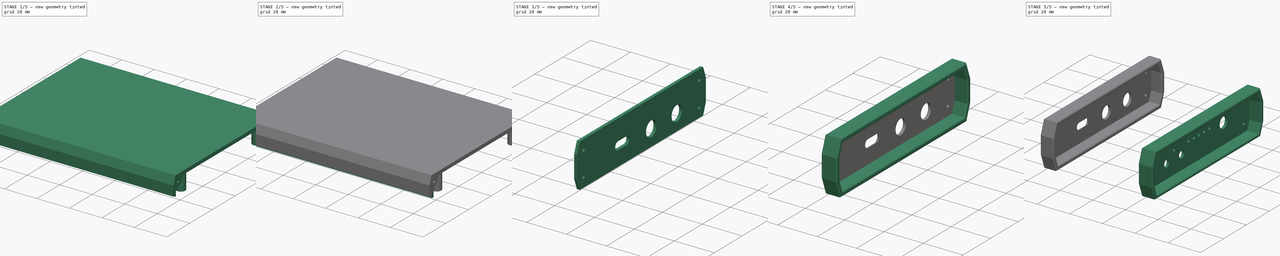
[diagram: build sequence overview — one tinted view per stage of 5, left to right]
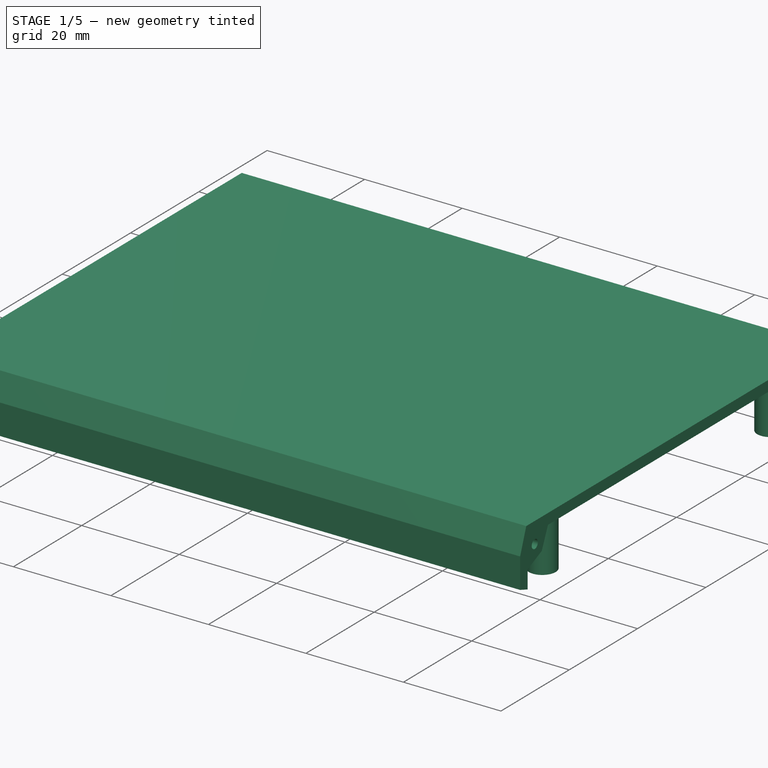
[diagram: stage 1 of 5 — iso view after this stage's code; geometry added in this stage tinted green]
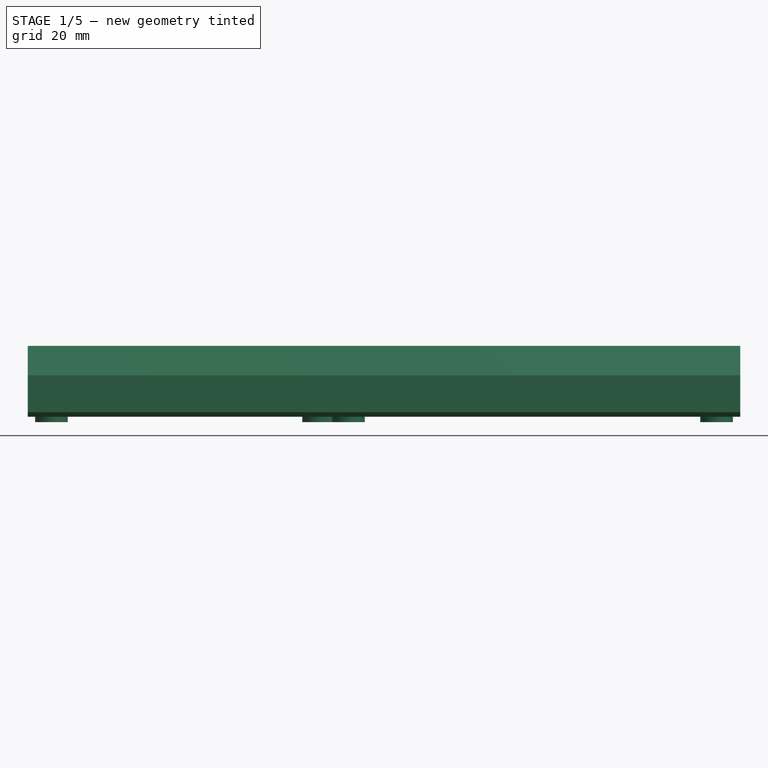
[diagram: stage 1 of 5 — front view after this stage's code; geometry added in this stage tinted green]
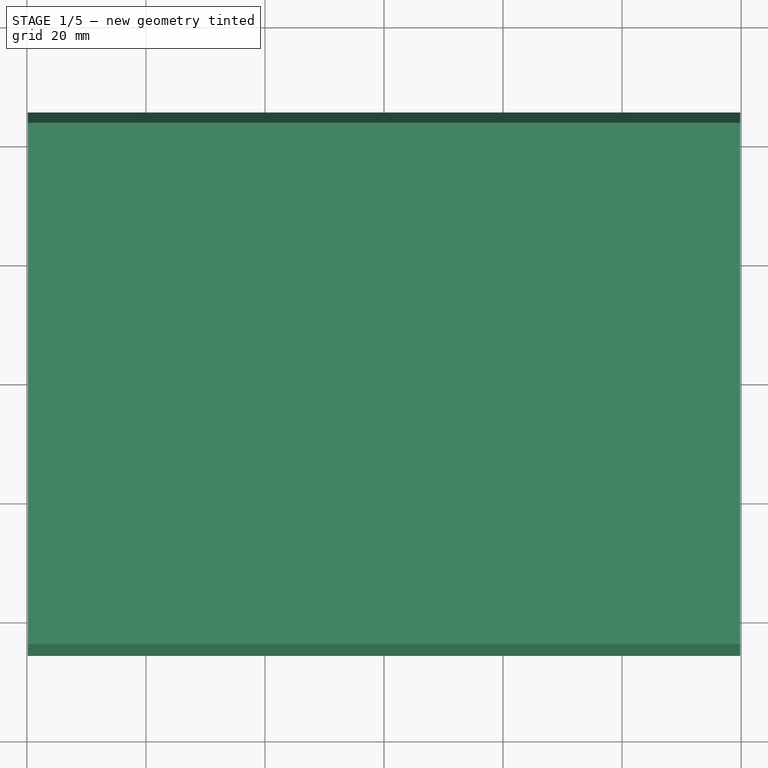
[diagram: stage 1 of 5 — top view after this stage's code; geometry added in this stage tinted green]
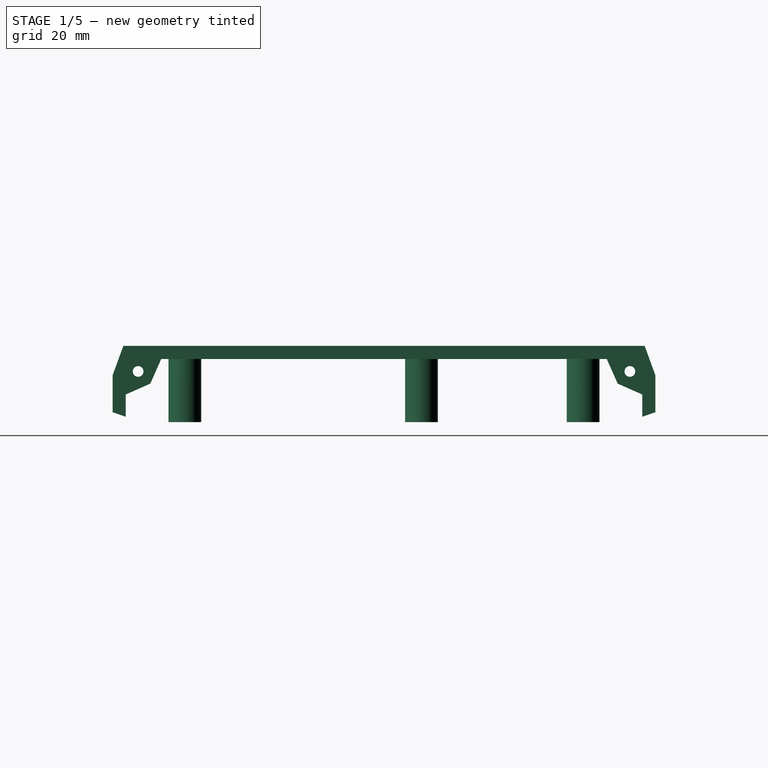
[diagram: stage 1 of 5 — right view after this stage's code; geometry added in this stage tinted green]
FCSTD DOCUMENT  (FreeCAD 1.1R20260414 (Git shallow))
Label: Закрывающий корпус
License: All rights reserved
LicenseURL: https://en.wikipedia.org/wiki/All_rights_reserved
objects: Sketcher::SketchObject×18, PartDesign::Pad×16, PartDesign::Chamfer×8, PartDesign::Mirrored×5, PartDesign::Body×5, App::Point×5, PartDesign::SubShapeBinder×3, PartDesign::Plane×2, PartDesign::MultiTransform×2, PartDesign::Pocket×1, Measure::MeasureArea×1
note: 135 computed .brp shape members not serialized (recipe doc carries the construction recipe); baked Part::Feature solids carry a one-line shape summary decoded from their .brp

FEATURE [PartDesign::Body] Body  label="Нижняя централ"
  AllowCompound = false
  Group = -> [Sketch,Sketch002,Pad,Pad001,Pad002,DatumPlane,Sketch003,Pad003,Sketch004,Pad004,MultiTransform,Mirrored,Mirrored001]
  Origin = -> Origin001
  Tip = -> MultiTransform
FEATURE [PartDesign::Mirrored] Mirrored003
  MirrorPlane = -> YZ_Plane002
  Refine = true
  Suppressed = false
  TransformMode = 0
FEATURE [Sketcher::SketchObject] Sketch005  label="Основной эскиз001"
  ArcFitTolerance = 1e-06
  AttachmentSupport = -> [XY_Plane002]
  ExternalTypes = [0]
  FullyConstrained = true
  MakeInternals = false
  MapMode = 5
  _ExternalGeoVersion = 0
  sketch-geometry (25):
    g0: Circle CenterX=-55.875 CenterY=33.45 CenterZ=0 NormalX=0 NormalY=0 NormalZ=1 AngleXU=0 Radius=1.6
    g1: Circle CenterX=55.875 CenterY=33.45 CenterZ=0 NormalX=0 NormalY=0 NormalZ=1 AngleXU=0 Radius=1.6
    g2: Circle CenterX=-55.875 CenterY=-33.45 CenterZ=0 NormalX=0 NormalY=0 NormalZ=1 AngleXU=0 Radius=1.6
    g3: Circle CenterX=55.875 CenterY=-33.45 CenterZ=0 NormalX=0 NormalY=0 NormalZ=1 AngleXU=0 Radius=1.6
    g4: Circle CenterX=-10.975 CenterY=6.3 CenterZ=0 NormalX=0 NormalY=0 NormalZ=1 AngleXU=0 Radius=1.6
    g5: Circle CenterX=-5.975 CenterY=-33.45 CenterZ=0 NormalX=0 NormalY=0 NormalZ=1 AngleXU=0 Radius=1.6
    g6: Circle CenterX=-55.875 CenterY=33.45 CenterZ=0 NormalX=0 NormalY=0 NormalZ=1 AngleXU=0 Radius=2.75
    g7: Circle CenterX=-10.975 CenterY=6.3 CenterZ=0 NormalX=0 NormalY=0 NormalZ=1 AngleXU=0 Radius=2.75
    g8: Circle CenterX=55.875 CenterY=33.45 CenterZ=0 NormalX=0 NormalY=0 NormalZ=1 AngleXU=0 Radius=2.75
    g9: Circle CenterX=-5.975 CenterY=-33.45 CenterZ=0 NormalX=0 NormalY=0 NormalZ=1 AngleXU=0 Radius=2.75
    g10: Circle CenterX=55.875 CenterY=-33.45 CenterZ=0 NormalX=0 NormalY=0 NormalZ=1 AngleXU=0 Radius=2.75
    g11: Circle CenterX=-55.875 CenterY=-33.45 CenterZ=0 NormalX=0 NormalY=0 NormalZ=1 AngleXU=0 Radius=2.75
    g12: GeomPoint [constr] X=0 Y=0 Z=0
    g13: GeomPoint [constr] X=-59.85 Y=-37.4 Z=0
    g14: GeomPoint [constr] X=-59.85 Y=37.4 Z=0
    g15: GeomPoint [constr] X=59.85 Y=37.4 Z=0
    g16: GeomPoint [constr] X=59.85 Y=-37.4 Z=0
    g17: ArcOfCircle CenterX=-55.85 CenterY=-33.4 CenterZ=0 NormalX=0 NormalY=0 NormalZ=1 AngleXU=0 Radius=4 StartAngle=3.14159 EndAngle=4.71239
    g18: ArcOfCircle CenterX=-55.85 CenterY=33.4 CenterZ=0 NormalX=0 NormalY=0 NormalZ=1 AngleXU=0 Radius=4 StartAngle=1.5708 EndAngle=3.14159
    g19: ArcOfCircle CenterX=55.85 CenterY=33.4 CenterZ=0 NormalX=0 NormalY=0 NormalZ=1 AngleXU=0 Radius=4 StartAngle=0 EndAngle=1.5708
    g20: ArcOfCircle CenterX=55.85 CenterY=-33.4 CenterZ=0 NormalX=0 NormalY=0 NormalZ=1 AngleXU=0 Radius=4 StartAngle=4.71239 EndAngle=6.28319
    g21: LineSegment StartX=-55.85 StartY=-37.4 StartZ=0 EndX=55.85 EndY=-37.4 EndZ=0
    g22: LineSegment StartX=59.85 StartY=-33.4 StartZ=0 EndX=59.85 EndY=33.4 EndZ=0
    g23: LineSegment StartX=55.85 StartY=37.4 StartZ=0 EndX=-55.85 EndY=37.4 EndZ=0
    g24: LineSegment StartX=-59.85 StartY=33.4 StartZ=0 EndX=-59.85 EndY=-33.4 EndZ=0
  constraints (65):
    c: Equal(g0,g2)
    c: Equal(g2,g4)
    c: Equal(g4,g5)
    c: Equal(g5,g3)
    c: Equal(g3,g1)
    c: Vertical(g2,g0)
    c: Vertical(g1,g3)
    c: Horizontal(g3,g2)
    c: DistanceX(g0,g1) = 111.75
    c: DistanceY(g3,g1) = 66.9
    c: Radius(g0) = 1.6
    c: Coincident(g6,g0)
    c: Coincident(g7,g4)
    c: Coincident(g8,g1)
    c: Coincident(g9,g5)
    c: Coincident(g10,g3)
    c: Coincident(g11,g2)
    c: Diameter(g6) = 5.5
    c: Equal(g6,g7)
    c: Equal(g7,g8)
    c: Equal(g8,g10)
    c: Equal(g10,g9)
    c: Equal(g9,g11)
    c: Symmetric(g2,g1,g12)
    c: Coincident(g-1,g12)
    c: Horizontal(g17,g20)
    c: Vertical(g20,g19)
    c: Horizontal(g19,g18)
    c: Vertical(g18,g17)
    c: Vertical(g13,g17)
    c: Horizontal(g13,g17)
    c: Vertical(g17,g17)
    c: Vertical(g18,g18)
    c: Horizontal(g18,g14)
    c: Vertical(g18,g14)
    c: Horizontal(g18,g18)
    c: Vertical(g19,g19)
    c: Horizontal(g19,g15)
    c: Vertical(g15,g19)
    c: Horizontal(g19,g19)
    c: Vertical(g16,g20)
    c: Horizontal(g16,g20)
    c: Vertical(g20,g20)
    c: Horizontal(g20,g20)
    c: Coincident(g21,g17)
    c: Coincident(g21,g20)
    c: Coincident(g22,g20)
    c: Coincident(g22,g19)
    c: Coincident(g23,g19)
    c: Coincident(g23,g18)
    c: Coincident(g24,g18)
    c: Tangent(g24,g17) = -1.5708
    c: Radius(g18) = 4
    c: Equal(g17,g18)
    c: Equal(g18,g19)
    c: Equal(g19,g20)
    c: DistanceY(g13,g14) = 74.8
    c: DistanceX(g14,g15) = 119.7
    c: Symmetric(g13,g15,g12)
    c: DistanceY(g5,g4) = 39.75
    c: Horizontal(g1,g0)
    c: Horizontal(g3,g5)
    c: DistanceX(g2,g5) = 49.9
    c: DistanceX(g4,g5) = 5
    c: Distance(g1,g3) = 63.7
FEATURE [Sketcher::SketchObject] Sketch006
  ArcFitTolerance = 1e-06
  AttachmentOffset = pos=(0,0,4) rot=(0,0,1;0rad)
  AttachmentSupport = -> [XY_Plane002]
  ExternalGeometry = -> [Sketch005]
  ExternalTypes = [0]
  FullyConstrained = true
  MakeInternals = false
  MapMode = 5
  Placement = pos=(0,0,4) rot=(0,0,1;0rad)
  _ExternalGeoVersion = 0
  sketch-geometry (4):
    g0: LineSegment StartX=-59.85 StartY=37.4 StartZ=0 EndX=-59.85 EndY=-37.4 EndZ=0
    g1: LineSegment StartX=-59.85 StartY=-37.4 StartZ=0 EndX=59.85 EndY=-37.4 EndZ=0
    g2: LineSegment StartX=59.85 StartY=-37.4 StartZ=0 EndX=59.85 EndY=37.4 EndZ=0
    g3: LineSegment StartX=59.85 StartY=37.4 StartZ=0 EndX=-59.85 EndY=37.4 EndZ=0
  constraints (12):
    c: Coincident(g0,g1)
    c: Coincident(g1,g2)
    c: Coincident(g2,g3)
    c: Coincident(g3,g0)
    c: Vertical(g0)
    c: Vertical(g2)
    c: Horizontal(g1)
    c: Horizontal(g3)
    c: PointOnObject(g-5,g1)
    c: PointOnObject(g-6,g2)
    c: PointOnObject(g-3,g3)
    c: PointOnObject(g-4,g0)
FEATURE [PartDesign::Pad] Pad005  label="Основа001"
  Direction = (0,0,1)
  Length = 2.2
  Length2 = 10
  Profile = -> Sketch006
  ReferenceAxis = -> Sketch006 [N_Axis]
  Refine = true
  SideType = 0
  Suppressed = false
  Type = 0
  Type2 = 0
FEATURE [PartDesign::Pad] Pad006  label="Держащие стержни001"
  BaseFeature = -> Pad005
  Direction = (0,0,1)
  Length = 4.2
  Length2 = 4
  Profile = -> Sketch005 [Edge2,Edge4,Edge6,Edge5,Edge1,Edge3]
  ReferenceAxis = -> Sketch005 [N_Axis]
  Refine = true
  Reversed = true
  SideType = 1
  Suppressed = false
  Type = 0
  Type2 = 0
FEATURE [PartDesign::Pad] Pad007  label="Расширение стержней001"
  BaseFeature = -> Pad006
  Direction = (0,0,1)
  Length = 6.6
  Length2 = 4
  Profile = -> Sketch005 [Edge11,Edge9,Edge8,Edge10,Edge7,Edge12]
  ReferenceAxis = -> Sketch005 [N_Axis]
  Refine = true
  Reversed = true
  SideType = 1
  Suppressed = false
  Type = 0
  Type2 = 0
FEATURE [PartDesign::Plane] DatumPlane001
  AttachmentSupport = -> [Pad007]
  Length = 104.706
  MapMode = 5
  Placement = pos=(59.85,0,0) rot=(0.57735,0.57735,0.57735;2.0944rad)
  ResizeMode = 0
  Width = 63.5056
FEATURE [Sketcher::SketchObject] Sketch007
  ArcFitTolerance = 1e-06
  AttachmentSupport = -> [DatumPlane001]
  ExternalGeometry = -> [Pad007]
  ExternalTypes = [0]
  FullyConstrained = true
  MakeInternals = false
  MapMode = 5
  Placement = pos=(59.85,0,0) rot=(0.57735,0.57735,0.57735;2.0944rad)
  _ExternalGeoVersion = 0
  sketch-geometry (24):
    g0: ArcOfCircle CenterX=-39.4 CenterY=-1e-16 CenterZ=0 NormalX=0 NormalY=0 NormalZ=1 AngleXU=0 Radius=4 StartAngle=1.5708 EndAngle=3.14159
    g1: ArcOfCircle CenterX=39.4 CenterY=2e-15 CenterZ=0 NormalX=0 NormalY=0 NormalZ=1 AngleXU=0 Radius=4 StartAngle=0 EndAngle=1.5708
    g2: GeomPoint [constr] X=-45.6 Y=6.2 Z=0
    g3: GeomPoint [constr] X=45.6 Y=6.2 Z=0
    g4: LineSegment StartX=37.4 StartY=4 StartZ=0 EndX=39.4 EndY=4 EndZ=0
    g5: LineSegment StartX=39.4 StartY=6.2 StartZ=0 EndX=37.4 EndY=6.2 EndZ=0
    g6: LineSegment StartX=43.4 StartY=2e-15 StartZ=0 EndX=43.4 EndY=-5.7 EndZ=0
    g7: LineSegment StartX=45.6 StartY=1.25 StartZ=0 EndX=45.6 EndY=-4.95 EndZ=0
    g8: LineSegment StartX=45.6 StartY=-4.95 StartZ=0 EndX=43.4 EndY=-5.7 EndZ=0
    g9: LineSegment StartX=-43.4 StartY=4e-16 StartZ=0 EndX=-43.4 EndY=-5.7 EndZ=0
    g10: LineSegment StartX=-43.4 StartY=-5.7 StartZ=0 EndX=-45.6 EndY=-4.95 EndZ=0
    g11: LineSegment StartX=-45.6 StartY=-4.95 StartZ=0 EndX=-45.6 EndY=1.25 EndZ=0
    g12: LineSegment StartX=-39.4 StartY=4 StartZ=0 EndX=-37.4 EndY=4 EndZ=0
    g13: LineSegment StartX=-37.4 StartY=6.2 StartZ=0 EndX=-39.4 EndY=6.2 EndZ=0
    g14: LineSegment StartX=-37.4 StartY=6.2 StartZ=0 EndX=-37.4 EndY=4 EndZ=0
    g15: LineSegment StartX=37.4 StartY=4 StartZ=0 EndX=37.4 EndY=6.2 EndZ=0
    g16: LineSegment StartX=-45.6 StartY=1.25 StartZ=0 EndX=-43.7983 EndY=6.2 EndZ=0
    g17: LineSegment StartX=-43.7983 StartY=6.2 StartZ=0 EndX=-39.4 EndY=6.2 EndZ=0
    g18: LineSegment [constr] StartX=-45.6 StartY=1.25 StartZ=0 EndX=-45.6 EndY=6.2 EndZ=0
    g19: LineSegment [constr] StartX=45.6 StartY=1.25 StartZ=0 EndX=45.6 EndY=6.2 EndZ=0
    g20: LineSegment StartX=45.6 StartY=1.25 StartZ=0 EndX=43.7983 EndY=6.2 EndZ=0
    g21: LineSegment StartX=43.7983 StartY=6.2 StartZ=0 EndX=39.4 EndY=6.2 EndZ=0
    g22: LineSegment [constr] StartX=-45.6 StartY=-4.95 StartZ=0 EndX=-43.4 EndY=-4.95 EndZ=0
    g23: LineSegment [constr] StartX=-43.4 StartY=-4.95 StartZ=0 EndX=-43.4 EndY=-5.7 EndZ=0
  constraints (59):
    c: Coincident(g4,g-4)
    c: Coincident(g5,g-4)
    c: Horizontal(g4)
    c: Horizontal(g5)
    c: Tangent(g4,g1) = 1.5708
    c: Vertical(g7)
    c: Coincident(g8,g6)
    c: Coincident(g7,g8)
    c: Vertical(g6)
    c: Tangent(g6,g1) = 1.5708
    c: Horizontal(g5,g3)
    c: Vertical(g7,g3)
    c: Coincident(g10,g9)
    c: Coincident(g11,g10)
    c: Coincident(g12,g-3)
    c: Coincident(g13,g-3)
    c: Horizontal(g12)
    c: Horizontal(g13)
    c: Vertical(g9)
    c: Tangent(g12,g0) = 1.5708
    c: Tangent(g9,g0) = -1.5708
    c: Symmetric(g2,g3,g-2)
    c: Symmetric(g10,g7,g-2)
    c: DistanceX(g13,g13) = 2
    c: Radius(g0) = 4
    c: DistanceY(g11,g11) = 6.2
    c: Coincident(g14,g13)
    c: Coincident(g14,g12)
    c: Coincident(g15,g4)
    c: Coincident(g15,g5)
    c: Horizontal(g6,g9)
    c: Coincident(g16,g11)
    c: Coincident(g17,g16)
    c: Coincident(g17,g13)
    c: Horizontal(g17)
    c: Coincident(g18,g11)
    c: Coincident(g18,g2)
    c: Vertical(g18)
    c: Angle(g16,g18) = 0.349066
    c: Coincident(g19,g7)
    c: Coincident(g19,g3)
    c: Coincident(g20,g7)
    c: Coincident(g21,g20)
    c: Coincident(g21,g5)
    c: Horizontal(g21)
    c: Equal(g5,g13)
    c: Angle(g19,g20) = 0.349066
    c: Equal(g8,g10)
    c: Vertical(g0,g13)
    c: Vertical(g1,g5)
    c: DistanceY(g0,g11) = 1.25
    c: Horizontal(g7,g11)
    c: Coincident(g10,g22)
    c: Horizontal(g22)
    c: Coincident(g22,g23)
    c: Coincident(g23,g9)
    c: Vertical(g23)
    c: Equal(g22,g14)
    c: DistanceY(g9,g22) = 0.75
FEATURE [PartDesign::Pad] Pad008  label="Стенки001"
  BaseFeature = -> Pad007
  Direction = (1,0,0)
  Length = 10
  Length2 = 10
  Profile = -> Sketch007
  ReferenceAxis = -> Sketch007 [N_Axis]
  Refine = true
  Reversed = true
  SideType = 0
  Suppressed = false
  Type = 3
  Type2 = 0
  UpToFace = -> Pad007 [Face1]
FEATURE [Sketcher::SketchObject] Sketch008
  ArcFitTolerance = 1e-06
  AttachmentSupport = -> [DatumPlane001]
  ExternalGeometry = -> [Sketch007]
  ExternalTypes = [0]
  FullyConstrained = false
  MakeInternals = false
  MapMode = 5
  Placement = pos=(59.85,0,0) rot=(0.57735,0.57735,0.57735;2.0944rad)
  _ExternalGeoVersion = 0
  sketch-geometry (10):
    g0: Circle CenterX=-41.3092 CenterY=1.90919 CenterZ=0 NormalX=0 NormalY=0 NormalZ=1 AngleXU=0 Radius=0.9
    g1: LineSegment [constr] StartX=-43.4 StartY=4e-15 StartZ=0 EndX=-40.945 EndY=1.08614 EndZ=0
    g2: LineSegment [constr] StartX=-39.4 StartY=4 StartZ=0 EndX=-40.4861 EndY=1.54505 EndZ=0
    g3: LineSegment StartX=-43.4 StartY=-1.9683 StartZ=0 EndX=-39.2623 EndY=-0.137672 EndZ=0
    g4: LineSegment StartX=-39.2623 StartY=-0.137672 StartZ=0 EndX=-37.4317 EndY=4 EndZ=0
    g5: ArcOfCircle CenterX=-39.4 CenterY=7.1e-15 CenterZ=0 NormalX=0 NormalY=0 NormalZ=1 AngleXU=0 Radius=4 StartAngle=1.5708 EndAngle=3.14159
    g6: LineSegment StartX=-37.4317 StartY=4 StartZ=0 EndX=-39.4 EndY=4 EndZ=0
    g7: LineSegment StartX=-43.4 StartY=-1.9683 StartZ=0 EndX=-43.4 EndY=4e-15 EndZ=0
    g8: LineSegment [constr] StartX=-42.0416 StartY=2.64155 StartZ=0 EndX=-39.4 EndY=7.1e-15 EndZ=0
    g9: GeomPoint [constr] X=-42.2284 Y=2.82843 Z=0
  constraints (24):
    c: Coincident(g2,g-3)
    c: Tangent(g1,g0) = -1.5708
    c: Tangent(g2,g0) = 1.5708
    c: Coincident(g1,g-3)
    c: Diameter(g0) = 1.8
    c: Parallel(g4,g2)
    c: Parallel(g3,g1)
    c: Coincident(g5,g1)
    c: Coincident(g6,g4)
    c: Coincident(g6,g5)
    c: Horizontal(g6)
    c: Coincident(g7,g3)
    c: Coincident(g7,g1)
    c: Vertical(g7)
    c: Coincident(g5,g2)
    c: Coincident(g8,g5)
    c: Symmetric(g1,g2,g8)
    c: PointOnObject(g9,g-3)
    c: PointOnObject(g9,g8)
    c: Distance(g9,g0) = 0.4
    c: Distance(g1,g3) = 1.8
    c: Coincident(g3,g4)
    c: PointOnObject(g9,g5)
    c: Equal(g7,g6)
FEATURE [PartDesign::Mirrored] Mirrored002
  MirrorPlane = -> Sketch008 [V_Axis]
  Refine = true
  Suppressed = false
  TransformMode = 0
FEATURE [PartDesign::Pad] Pad009  label="Крепление корпуса001"
  BaseFeature = -> Pad008
  Direction = (0.8,0,0)
  Length = 25
  Length2 = 10
  Profile = -> Sketch008
  ReferenceAxis = -> Sketch008 [N_Axis]
  Refine = true
  Reversed = true
  SideType = 0
  Suppressed = false
  Type = 0
  Type2 = 0
  UseCustomVector = true
FEATURE [PartDesign::MultiTransform] MultiTransform001
  BaseFeature = -> Pad009
  Originals = -> [Pad009]
  Refine = true
  Suppressed = false
  TransformMode = 0
  Transformations = -> [Mirrored002,Mirrored003]
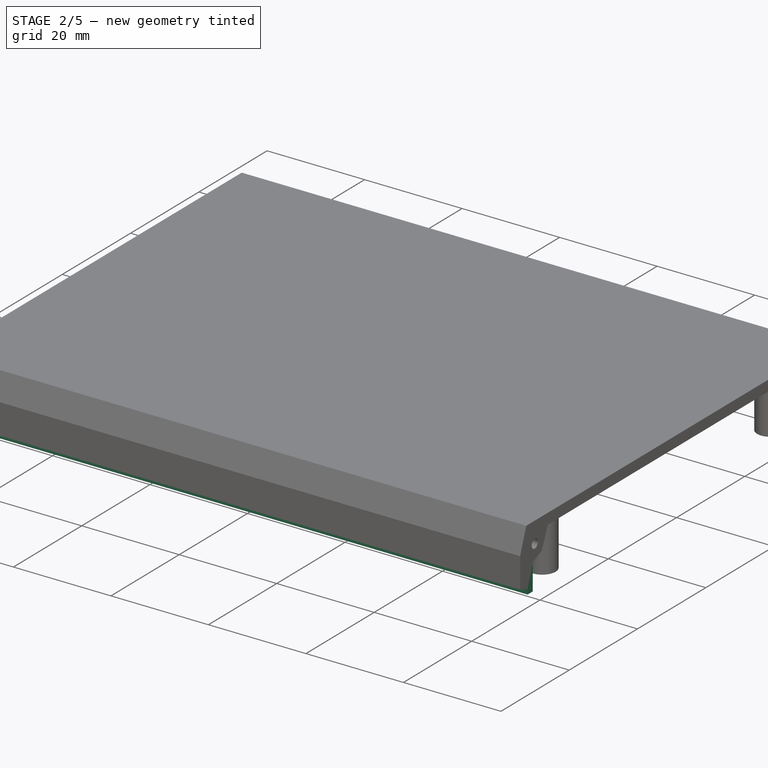
[diagram: stage 2 of 5 — iso view after this stage's code; geometry added in this stage tinted green]
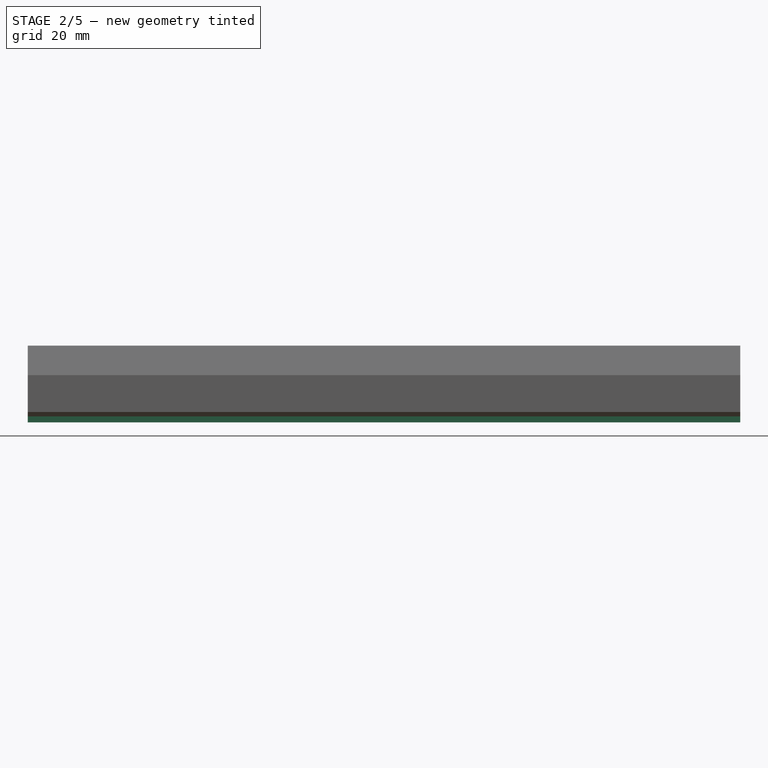
[diagram: stage 2 of 5 — front view after this stage's code; geometry added in this stage tinted green]
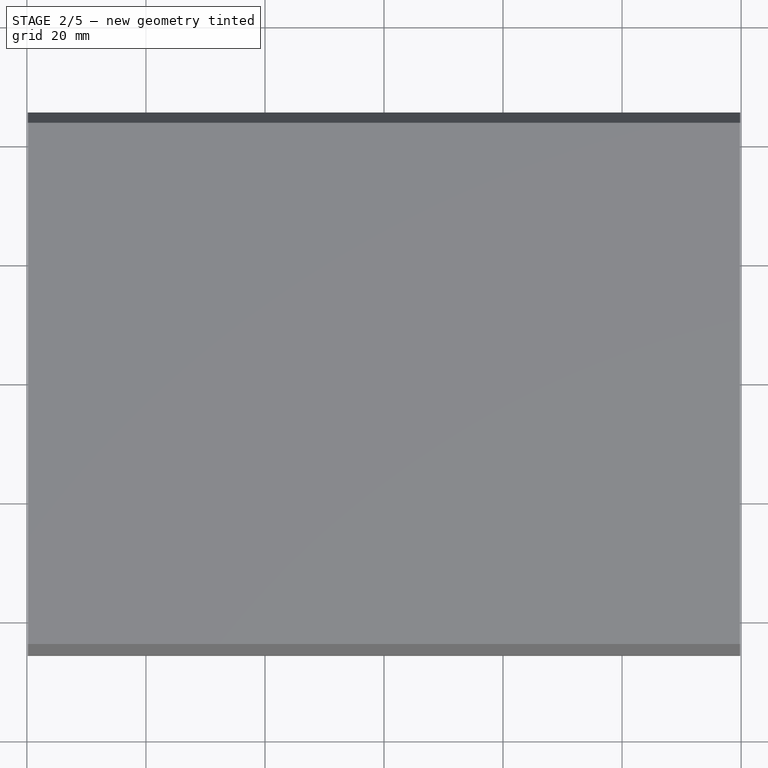
[diagram: stage 2 of 5 — top view after this stage's code; geometry added in this stage tinted green]
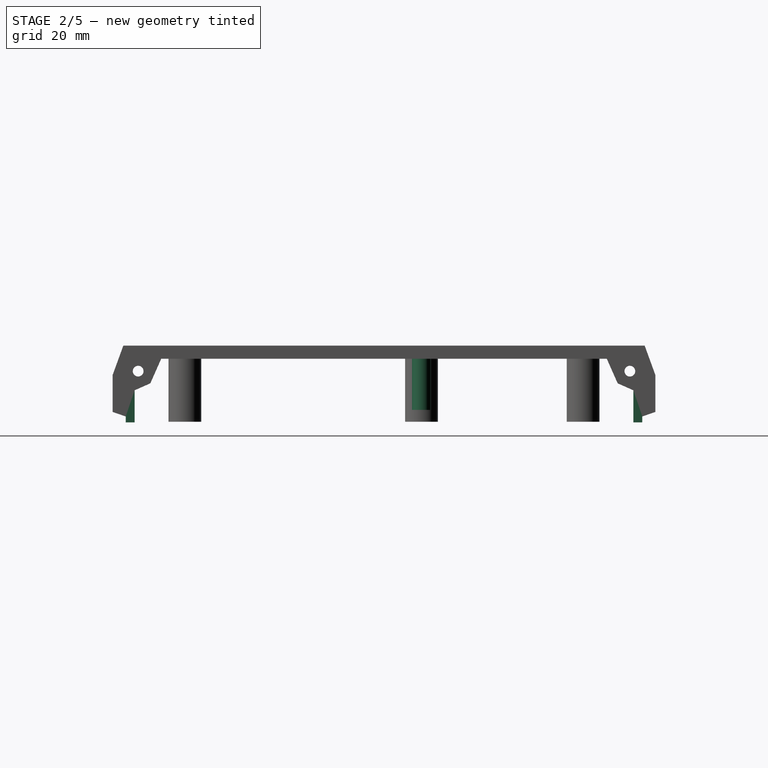
[diagram: stage 2 of 5 — right view after this stage's code; geometry added in this stage tinted green]
FEATURE [Sketcher::SketchObject] Sketch  label="Основной эскиз"
  ArcFitTolerance = 1e-06
  AttachmentSupport = -> [XY_Plane001]
  ExternalTypes = [0]
  FullyConstrained = true
  MakeInternals = false
  MapMode = 5
  _ExternalGeoVersion = 0
  sketch-geometry (25):
    g0: Circle CenterX=-55.875 CenterY=33.45 CenterZ=0 NormalX=0 NormalY=0 NormalZ=1 AngleXU=0 Radius=1.6
    g1: Circle CenterX=55.875 CenterY=33.45 CenterZ=0 NormalX=0 NormalY=0 NormalZ=1 AngleXU=0 Radius=1.6
    g2: Circle CenterX=-55.875 CenterY=-33.45 CenterZ=0 NormalX=0 NormalY=0 NormalZ=1 AngleXU=0 Radius=1.6
    g3: Circle CenterX=55.875 CenterY=-33.45 CenterZ=0 NormalX=0 NormalY=0 NormalZ=1 AngleXU=0 Radius=1.6
    g4: Circle CenterX=5.975 CenterY=-33.45 CenterZ=0 NormalX=0 NormalY=0 NormalZ=1 AngleXU=0 Radius=1.6
    g5: Circle CenterX=10.975 CenterY=6.3 CenterZ=0 NormalX=0 NormalY=0 NormalZ=1 AngleXU=0 Radius=1.6
    g6: Circle CenterX=-55.875 CenterY=33.45 CenterZ=0 NormalX=0 NormalY=0 NormalZ=1 AngleXU=0 Radius=2.75
    g7: Circle CenterX=5.975 CenterY=-33.45 CenterZ=0 NormalX=0 NormalY=0 NormalZ=1 AngleXU=0 Radius=2.75
    g8: Circle CenterX=55.875 CenterY=33.45 CenterZ=0 NormalX=0 NormalY=0 NormalZ=1 AngleXU=0 Radius=2.75
    g9: Circle CenterX=10.975 CenterY=6.3 CenterZ=0 NormalX=0 NormalY=0 NormalZ=1 AngleXU=0 Radius=2.75
    g10: Circle CenterX=55.875 CenterY=-33.45 CenterZ=0 NormalX=0 NormalY=0 NormalZ=1 AngleXU=0 Radius=2.75
    g11: Circle CenterX=-55.875 CenterY=-33.45 CenterZ=0 NormalX=0 NormalY=0 NormalZ=1 AngleXU=0 Radius=2.75
    g12: GeomPoint [constr] X=0 Y=0 Z=0
    g13: GeomPoint [constr] X=-59.85 Y=-37.4 Z=0
    g14: GeomPoint [constr] X=-59.85 Y=37.4 Z=0
    g15: GeomPoint [constr] X=59.85 Y=37.4 Z=0
    g16: GeomPoint [constr] X=59.85 Y=-37.4 Z=0
    g17: ArcOfCircle CenterX=-55.85 CenterY=-33.4 CenterZ=0 NormalX=0 NormalY=0 NormalZ=1 AngleXU=0 Radius=4 StartAngle=3.14159 EndAngle=4.71239
    g18: ArcOfCircle CenterX=-55.85 CenterY=33.4 CenterZ=0 NormalX=0 NormalY=0 NormalZ=1 AngleXU=0 Radius=4 StartAngle=1.5708 EndAngle=3.14159
    g19: ArcOfCircle CenterX=55.85 CenterY=33.4 CenterZ=0 NormalX=0 NormalY=0 NormalZ=1 AngleXU=0 Radius=4 StartAngle=0 EndAngle=1.5708
    g20: ArcOfCircle CenterX=55.85 CenterY=-33.4 CenterZ=0 NormalX=0 NormalY=0 NormalZ=1 AngleXU=0 Radius=4 StartAngle=4.71239 EndAngle=6.28319
    g21: LineSegment StartX=-55.85 StartY=-37.4 StartZ=0 EndX=55.85 EndY=-37.4 EndZ=0
    g22: LineSegment StartX=59.85 StartY=-33.4 StartZ=0 EndX=59.85 EndY=33.4 EndZ=0
    g23: LineSegment StartX=55.85 StartY=37.4 StartZ=0 EndX=-55.85 EndY=37.4 EndZ=0
    g24: LineSegment StartX=-59.85 StartY=33.4 StartZ=0 EndX=-59.85 EndY=-33.4 EndZ=0
  constraints (65):
    c: Equal(g0,g2)
    c: Equal(g2,g4)
    c: Equal(g4,g5)
    c: Equal(g5,g3)
    c: Equal(g3,g1)
    c: Vertical(g2,g0)
    c: Vertical(g1,g3)
    c: Horizontal(g3,g2)
    c: DistanceX(g0,g1) = 111.75
    c: DistanceY(g3,g1) = 66.9
    c: Radius(g0) = 1.6
    c: Coincident(g6,g0)
    c: Coincident(g7,g4)
    c: Coincident(g8,g1)
    c: Coincident(g9,g5)
    c: Coincident(g10,g3)
    c: Coincident(g11,g2)
    c: Diameter(g6) = 5.5
    c: Equal(g6,g7)
    c: Equal(g7,g8)
    c: Equal(g8,g10)
    c: Equal(g10,g9)
    c: Equal(g9,g11)
    c: Symmetric(g2,g1,g12)
    c: Coincident(g-1,g12)
    c: Horizontal(g17,g20)
    c: Vertical(g20,g19)
    c: Horizontal(g19,g18)
    c: Vertical(g18,g17)
    c: Vertical(g13,g17)
    c: Horizontal(g13,g17)
    c: Vertical(g17,g17)
    c: Vertical(g18,g18)
    c: Horizontal(g18,g14)
    c: Vertical(g18,g14)
    c: Horizontal(g18,g18)
    c: Vertical(g19,g19)
    c: Horizontal(g19,g15)
    c: Vertical(g15,g19)
    c: Horizontal(g19,g19)
    c: Vertical(g16,g20)
    c: Horizontal(g16,g20)
    c: Vertical(g20,g20)
    c: Horizontal(g20,g20)
    c: Coincident(g21,g17)
    c: Coincident(g21,g20)
    c: Coincident(g22,g20)
    c: Coincident(g22,g19)
    c: Coincident(g23,g19)
    c: Coincident(g23,g18)
    c: Coincident(g24,g18)
    c: Tangent(g24,g17) = -1.5708
    c: Radius(g18) = 4
    c: Equal(g17,g18)
    c: Equal(g18,g19)
    c: Equal(g19,g20)
    c: DistanceY(g13,g14) = 74.8
    c: DistanceX(g14,g15) = 119.7
    c: Symmetric(g13,g15,g12)
    c: Horizontal(g2,g4)
    c: DistanceY(g4,g5) = 39.75
    c: Horizontal(g0,g1)
    c: DistanceX(g4,g5) = 5
    c: DistanceX(g4,g3) = 49.9
    c: Distance(g1,g3) = 63.7
FEATURE [Sketcher::SketchObject] Sketch001
  ArcFitTolerance = 1e-06
  ExternalTypes = [0]
  FullyConstrained = true
  MakeInternals = false
  MapMode = 5
  _ExternalGeoVersion = 0
  sketch-geometry (25):
    g0: Circle CenterX=-56 CenterY=33.5 CenterZ=0 NormalX=0 NormalY=0 NormalZ=1 AngleXU=0 Radius=1.6
    g1: Circle CenterX=56 CenterY=33.5 CenterZ=0 NormalX=0 NormalY=0 NormalZ=1 AngleXU=0 Radius=1.6
    g2: Circle CenterX=-56 CenterY=-33.5 CenterZ=0 NormalX=0 NormalY=0 NormalZ=1 AngleXU=0 Radius=1.6
    g3: Circle CenterX=56 CenterY=-33.5 CenterZ=0 NormalX=0 NormalY=0 NormalZ=1 AngleXU=0 Radius=1.6
    g4: Circle CenterX=6 CenterY=33.5 CenterZ=0 NormalX=0 NormalY=0 NormalZ=1 AngleXU=0 Radius=1.6
    g5: Circle CenterX=1 CenterY=-6.5 CenterZ=0 NormalX=0 NormalY=0 NormalZ=1 AngleXU=0 Radius=1.6
    g6: Circle CenterX=-56 CenterY=33.5 CenterZ=0 NormalX=0 NormalY=0 NormalZ=1 AngleXU=0 Radius=2.75
    g7: Circle CenterX=6 CenterY=33.5 CenterZ=0 NormalX=0 NormalY=0 NormalZ=1 AngleXU=0 Radius=2.75
    g8: Circle CenterX=56 CenterY=33.5 CenterZ=0 NormalX=0 NormalY=0 NormalZ=1 AngleXU=0 Radius=2.75
    g9: Circle CenterX=1 CenterY=-6.5 CenterZ=0 NormalX=0 NormalY=0 NormalZ=1 AngleXU=0 Radius=2.75
    g10: Circle CenterX=56 CenterY=-33.5 CenterZ=0 NormalX=0 NormalY=0 NormalZ=1 AngleXU=0 Radius=2.75
    g11: Circle CenterX=-56 CenterY=-33.5 CenterZ=0 NormalX=0 NormalY=0 NormalZ=1 AngleXU=0 Radius=2.75
    g12: GeomPoint [constr] X=0 Y=0 Z=0
    g13: GeomPoint [constr] X=-60 Y=-37.5 Z=0
    g14: GeomPoint [constr] X=-60 Y=37.5 Z=0
    g15: GeomPoint [constr] X=60 Y=37.5 Z=0
    g16: GeomPoint [constr] X=60 Y=-37.5 Z=0
    g17: ArcOfCircle CenterX=-56 CenterY=-33.5 CenterZ=0 NormalX=0 NormalY=0 NormalZ=1 AngleXU=0 Radius=4 StartAngle=3.14159 EndAngle=4.71239
    g18: ArcOfCircle CenterX=-56 CenterY=33.5 CenterZ=0 NormalX=0 NormalY=0 NormalZ=1 AngleXU=0 Radius=4 StartAngle=1.5708 EndAngle=3.14159
    g19: ArcOfCircle CenterX=56 CenterY=33.5 CenterZ=0 NormalX=0 NormalY=0 NormalZ=1 AngleXU=0 Radius=4 StartAngle=0 EndAngle=1.5708
    g20: ArcOfCircle CenterX=56 CenterY=-33.5 CenterZ=0 NormalX=0 NormalY=0 NormalZ=1 AngleXU=0 Radius=4 StartAngle=4.71239 EndAngle=6.28319
    g21: LineSegment StartX=-56 StartY=-37.5 StartZ=0 EndX=56 EndY=-37.5 EndZ=0
    g22: LineSegment StartX=60 StartY=-33.5 StartZ=0 EndX=60 EndY=33.5 EndZ=0
    g23: LineSegment StartX=56 StartY=37.5 StartZ=0 EndX=-56 EndY=37.5 EndZ=0
    g24: LineSegment StartX=-60 StartY=33.5 StartZ=0 EndX=-60 EndY=-33.5 EndZ=0
  constraints (64):
    c: Equal(g0,g2)
    c: Equal(g2,g4)
    c: Equal(g4,g5)
    c: Equal(g5,g3)
    c: Equal(g3,g1)
    c: Vertical(g2,g0)
    c: Horizontal(g0,g4)
    c: Horizontal(g4,g1)
    c: Vertical(g1,g3)
    c: Horizontal(g3,g2)
    c: DistanceX(g0,g1) = 112
    c: DistanceX(g4,g1) = 50
    c: DistanceY(g3,g1) = 67
    c: DistanceY(g5,g4) = 40
    c: Radius(g0) = 1.6
    c: Coincident(g6,g0)
    c: Coincident(g7,g4)
    c: Coincident(g8,g1)
    c: Coincident(g9,g5)
    c: Coincident(g10,g3)
    c: Coincident(g11,g2)
    c: Diameter(g6) = 5.5
    c: Equal(g6,g7)
    c: Equal(g7,g8)
    c: Equal(g8,g10)
    c: Equal(g10,g9)
    c: Equal(g9,g11)
    c: Symmetric(g2,g1,g12)
    c: Coincident(g-1,g12)
    c: Horizontal(g17,g20)
    c: Vertical(g20,g19)
    c: Horizontal(g19,g18)
    c: Vertical(g18,g17)
    c: Vertical(g13,g17)
    c: Horizontal(g13,g17)
    c: Vertical(g17,g17)
    c: Vertical(g18,g18)
    c: Horizontal(g18,g14)
    c: Vertical(g18,g14)
    c: Horizontal(g18,g18)
    c: Vertical(g19,g19)
    c: Horizontal(g19,g15)
    c: Vertical(g15,g19)
    c: Horizontal(g19,g19)
    c: Vertical(g16,g20)
    c: Horizontal(g16,g20)
    c: Vertical(g20,g20)
    c: Horizontal(g20,g20)
    c: Coincident(g21,g17)
    c: Coincident(g21,g20)
    c: Coincident(g22,g20)
    c: Coincident(g22,g19)
    c: Coincident(g23,g19)
    c: Coincident(g23,g18)
    c: Coincident(g24,g18)
    c: Tangent(g24,g17) = -1.5708
    c: Radius(g18) = 4
    c: Equal(g17,g18)
    c: Equal(g18,g19)
    c: Equal(g19,g20)
    c: DistanceY(g13,g14) = 75
    c: DistanceX(g14,g15) = 120
    c: Symmetric(g13,g15,g12)
    c: DistanceX(g5,g4) = 5
FEATURE [Sketcher::SketchObject] Sketch002
  ArcFitTolerance = 1e-06
  AttachmentOffset = pos=(0,0,4) rot=(0,0,1;0rad)
  AttachmentSupport = -> [XY_Plane001]
  ExternalGeometry = -> [Sketch]
  ExternalTypes = [0]
  FullyConstrained = true
  MakeInternals = false
  MapMode = 5
  Placement = pos=(0,0,4) rot=(0,0,1;0rad)
  _ExternalGeoVersion = 0
  sketch-geometry (4):
    g0: LineSegment StartX=-59.85 StartY=37.4 StartZ=0 EndX=-59.85 EndY=-37.4 EndZ=0
    g1: LineSegment StartX=-59.85 StartY=-37.4 StartZ=0 EndX=59.85 EndY=-37.4 EndZ=0
    g2: LineSegment StartX=59.85 StartY=-37.4 StartZ=0 EndX=59.85 EndY=37.4 EndZ=0
    g3: LineSegment StartX=59.85 StartY=37.4 StartZ=0 EndX=-59.85 EndY=37.4 EndZ=0
  constraints (12):
    c: Coincident(g0,g1)
    c: Coincident(g1,g2)
    c: Coincident(g2,g3)
    c: Coincident(g3,g0)
    c: Vertical(g0)
    c: Vertical(g2)
    c: Horizontal(g1)
    c: Horizontal(g3)
    c: PointOnObject(g-5,g1)
    c: PointOnObject(g-6,g2)
    c: PointOnObject(g-3,g3)
    c: PointOnObject(g-4,g0)
FEATURE [PartDesign::Pad] Pad  label="Основа"
  Direction = (0,0,1)
  Length = 2.2
  Length2 = 10
  Profile = -> Sketch002
  ReferenceAxis = -> Sketch002 [N_Axis]
  Refine = true
  SideType = 0
  Suppressed = false
  Type = 0
  Type2 = 0
FEATURE [PartDesign::Pad] Pad001  label="Держащие стержни"
  BaseFeature = -> Pad
  Direction = (0,0,1)
  Length = 4.6
  Length2 = 4
  Profile = -> Sketch [Edge2,Edge4,Edge6,Edge5,Edge1,Edge3]
  ReferenceAxis = -> Sketch [N_Axis]
  Refine = true
  Reversed = true
  SideType = 1
  Suppressed = false
  Type = 0
  Type2 = 0
FEATURE [Sketcher::SketchObject] Sketch009
  ArcFitTolerance = 1e-06
  AttachmentSupport = -> [MultiTransform001]
  ExternalGeometry = -> [MultiTransform001]
  ExternalTypes = [0]
  FullyConstrained = true
  MakeInternals = false
  MapMode = 5
  Placement = pos=(0,0,-6.6) rot=(1,0,0;3.14159rad)
  _ExternalGeoVersion = 0
  sketch-geometry (6):
    g0: Circle CenterX=-55.875 CenterY=-33.45 CenterZ=0 NormalX=0 NormalY=0 NormalZ=1 AngleXU=0 Radius=1.825
    g1: Circle CenterX=-55.875 CenterY=33.45 CenterZ=0 NormalX=0 NormalY=0 NormalZ=1 AngleXU=0 Radius=1.825
    g2: Circle CenterX=-5.975 CenterY=33.45 CenterZ=0 NormalX=0 NormalY=0 NormalZ=1 AngleXU=0 Radius=1.825
    g3: Circle CenterX=55.875 CenterY=33.45 CenterZ=0 NormalX=0 NormalY=0 NormalZ=1 AngleXU=0 Radius=1.825
    g4: Circle CenterX=55.875 CenterY=-33.45 CenterZ=0 NormalX=0 NormalY=0 NormalZ=1 AngleXU=0 Radius=1.825
    g5: Circle CenterX=-10.975 CenterY=-6.3 CenterZ=0 NormalX=0 NormalY=0 NormalZ=1 AngleXU=0 Radius=1.825
  constraints (12):
    c: Coincident(g0,g-8)
    c: Coincident(g1,g-3)
    c: Coincident(g2,g-4)
    c: Coincident(g3,g-5)
    c: Coincident(g4,g-6)
    c: Coincident(g5,g-7)
    c: Equal(g1,g2)
    c: Equal(g2,g3)
    c: Equal(g3,g4)
    c: Equal(g4,g5)
    c: Equal(g5,g0)
    c: Diameter(g1) = 3.65
FEATURE [PartDesign::Pocket] Pocket
  BaseFeature = -> MultiTransform001
  Direction = (0,0,1)
  Length = 4.2
  Length2 = 5
  Profile = -> Sketch009
  ReferenceAxis = -> Sketch009 [N_Axis]
  Refine = true
  SideType = 0
  Suppressed = false
  Type = 0
  Type2 = 0
FEATURE [Sketcher::SketchObject] Sketch011
  ArcFitTolerance = 1e-06
  AttachmentSupport = -> [Pocket]
  ExternalGeometry = -> [Pocket]
  ExternalTypes = [0]
  FullyConstrained = false
  MakeInternals = false
  MapMode = 5
  Placement = pos=(59.85,0,0) rot=(0.57735,0.57735,0.57735;2.0944rad)
  _ExternalGeoVersion = 0
  sketch-geometry (5):
    g0: LineSegment StartX=-43.4 StartY=-1.9683 StartZ=0 EndX=-43.4 EndY=-6.7 EndZ=0
    g1: LineSegment StartX=-43.4 StartY=-6.7 StartZ=0 EndX=-41.9 EndY=-6.7 EndZ=0
    g2: LineSegment StartX=-41.9 StartY=-6.7 StartZ=0 EndX=-41.9 EndY=-1.26884 EndZ=0
    g3: LineSegment StartX=-41.9 StartY=-1.26884 StartZ=0 EndX=-43.4 EndY=-1.9683 EndZ=0
    g4: LineSegment [constr] StartX=-43.4 StartY=-1.9683 StartZ=0 EndX=-39.8555 EndY=-1.9683 EndZ=0
  constraints (13):
    c: Coincident(g0,g1)
    c: Coincident(g1,g2)
    c: Coincident(g2,g3)
    c: Coincident(g3,g0)
    c: Vertical(g0)
    c: Vertical(g2)
    c: Horizontal(g1)
    c: Coincident(g0,g-3)
    c: DistanceY(g0,g-3) = 1
    c: Coincident(g4,g0)
    c: Horizontal(g4)
    c: Angle(g4,g3) = 0.436332
    c: DistanceX(g1,g1) = 1.5
FEATURE [PartDesign::Pad] Pad011
  BaseFeature = -> Pocket
  Direction = (1,0,0)
  Length = 10
  Length2 = 10
  Profile = -> Sketch011
  ReferenceAxis = -> Sketch011 [N_Axis]
  Refine = true
  Reversed = true
  SideType = 0
  Suppressed = false
  Type = 3
  Type2 = 0
  UpToFace = -> Pocket [Face11]
FEATURE [PartDesign::Mirrored] Mirrored004
  BaseFeature = -> Pad011
  MirrorPlane = -> XZ_Plane002
  Originals = -> [Pad011]
  Refine = true
  Suppressed = false
  TransformMode = 0
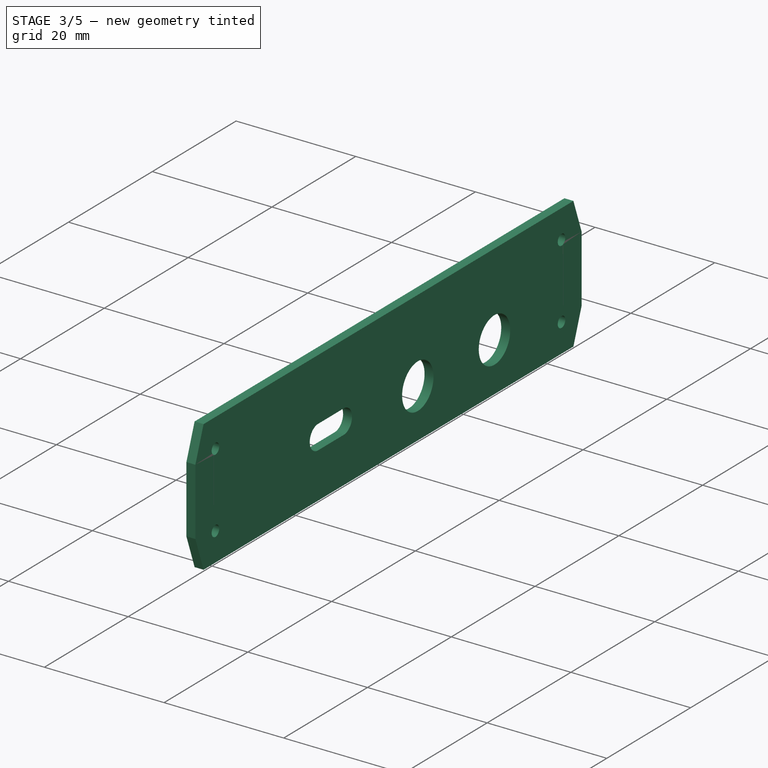
[diagram: stage 3 of 5 — iso view after this stage's code; geometry added in this stage tinted green]
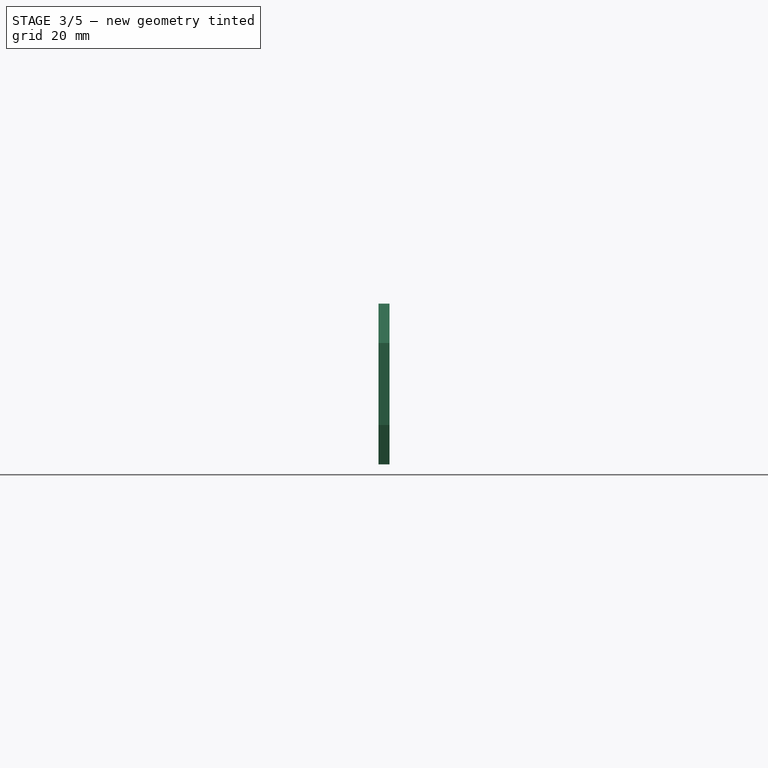
[diagram: stage 3 of 5 — front view after this stage's code; geometry added in this stage tinted green]
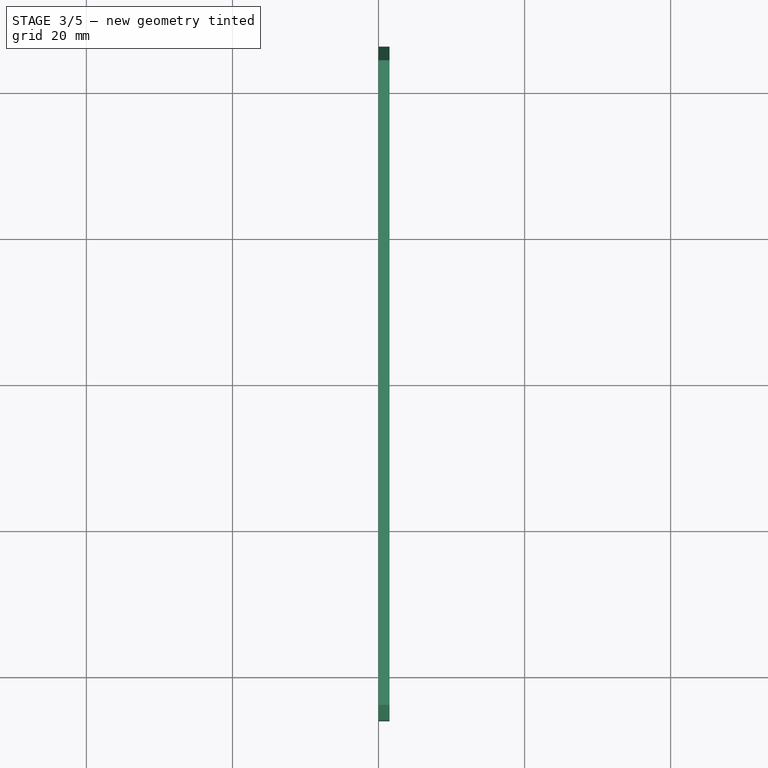
[diagram: stage 3 of 5 — top view after this stage's code; geometry added in this stage tinted green]
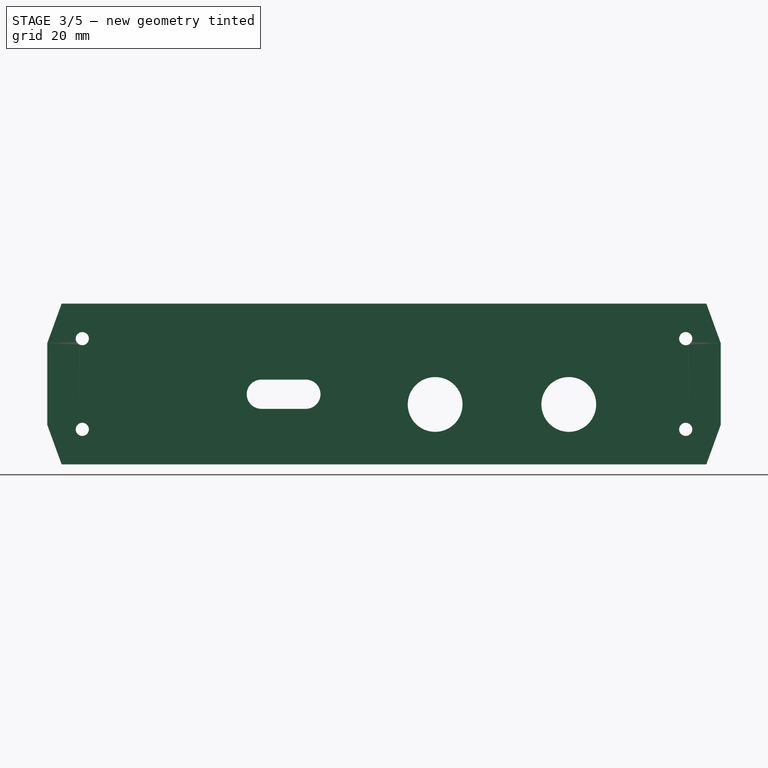
[diagram: stage 3 of 5 — right view after this stage's code; geometry added in this stage tinted green]
FEATURE [PartDesign::Pad] Pad002  label="Расширение стержней"
  BaseFeature = -> Pad001
  Direction = (0,0,1)
  Length = 4
  Length2 = 10
  Profile = -> Sketch [Edge11,Edge9,Edge8,Edge10,Edge7,Edge12]
  ReferenceAxis = -> Sketch [N_Axis]
  Refine = true
  SideType = 0
  Suppressed = false
  Type = 0
  Type2 = 0
FEATURE [PartDesign::Plane] DatumPlane
  AttachmentSupport = -> [Pad002]
  Length = 104.706
  MapMode = 5
  Placement = pos=(59.85,0,0) rot=(0.57735,0.57735,0.57735;2.0944rad)
  ResizeMode = 0
  Width = 63.5056
FEATURE [Sketcher::SketchObject] Sketch003
  ArcFitTolerance = 1e-06
  AttachmentSupport = -> [DatumPlane]
  ExternalGeometry = -> [Pad002]
  ExternalTypes = [0]
  FullyConstrained = true
  MakeInternals = false
  MapMode = 5
  Placement = pos=(59.85,0,0) rot=(0.57735,0.57735,0.57735;2.0944rad)
  _ExternalGeoVersion = 0
  sketch-geometry (24):
    g0: ArcOfCircle CenterX=-39.4 CenterY=0 CenterZ=0 NormalX=0 NormalY=0 NormalZ=1 AngleXU=0 Radius=4 StartAngle=1.5708 EndAngle=3.14159
    g1: ArcOfCircle CenterX=39.4 CenterY=-5e-16 CenterZ=0 NormalX=0 NormalY=0 NormalZ=1 AngleXU=0 Radius=4 StartAngle=0 EndAngle=1.5708
    g2: GeomPoint [constr] X=-45.6 Y=6.2 Z=0
    g3: GeomPoint [constr] X=45.6 Y=6.2 Z=0
    g4: LineSegment StartX=37.4 StartY=4 StartZ=0 EndX=39.4 EndY=4 EndZ=0
    g5: LineSegment StartX=39.4 StartY=6.2 StartZ=0 EndX=37.4 EndY=6.2 EndZ=0
    g6: LineSegment StartX=43.4 StartY=-5e-16 StartZ=0 EndX=43.4 EndY=-3.5 EndZ=0
    g7: LineSegment StartX=45.6 StartY=1.25 StartZ=0 EndX=45.6 EndY=-4.25 EndZ=0
    g8: LineSegment StartX=45.6 StartY=-4.25 StartZ=0 EndX=43.4 EndY=-3.5 EndZ=0
    g9: LineSegment StartX=-43.4 StartY=5e-16 StartZ=0 EndX=-43.4 EndY=-3.5 EndZ=0
    g10: LineSegment StartX=-43.4 StartY=-3.5 StartZ=0 EndX=-45.6 EndY=-4.25 EndZ=0
    g11: LineSegment StartX=-45.6 StartY=-4.25 StartZ=0 EndX=-45.6 EndY=1.25 EndZ=0
    g12: LineSegment StartX=-39.4 StartY=4 StartZ=0 EndX=-37.4 EndY=4 EndZ=0
    g13: LineSegment StartX=-37.4 StartY=6.2 StartZ=0 EndX=-39.4 EndY=6.2 EndZ=0
    g14: LineSegment StartX=-37.4 StartY=6.2 StartZ=0 EndX=-37.4 EndY=4 EndZ=0
    g15: LineSegment StartX=37.4 StartY=4 StartZ=0 EndX=37.4 EndY=6.2 EndZ=0
    g16: LineSegment StartX=-45.6 StartY=1.25 StartZ=0 EndX=-43.7983 EndY=6.2 EndZ=0
    g17: LineSegment StartX=-43.7983 StartY=6.2 StartZ=0 EndX=-39.4 EndY=6.2 EndZ=0
    g18: LineSegment [constr] StartX=-45.6 StartY=1.25 StartZ=0 EndX=-45.6 EndY=6.2 EndZ=0
    g19: LineSegment [constr] StartX=45.6 StartY=1.25 StartZ=0 EndX=45.6 EndY=6.2 EndZ=0
    g20: LineSegment StartX=45.6 StartY=1.25 StartZ=0 EndX=43.7983 EndY=6.2 EndZ=0
    g21: LineSegment StartX=43.7983 StartY=6.2 StartZ=0 EndX=39.4 EndY=6.2 EndZ=0
    g22: LineSegment [constr] StartX=-45.6 StartY=-4.25 StartZ=0 EndX=-43.4 EndY=-4.25 EndZ=0
    g23: LineSegment [constr] StartX=-43.4 StartY=-4.25 StartZ=0 EndX=-43.4 EndY=-3.5 EndZ=0
  constraints (59):
    c: Coincident(g4,g-4)
    c: Coincident(g5,g-4)
    c: Horizontal(g4)
    c: Horizontal(g5)
    c: Tangent(g4,g1) = 1.5708
    c: Vertical(g7)
    c: Coincident(g8,g6)
    c: Coincident(g7,g8)
    c: Vertical(g6)
    c: Tangent(g6,g1) = 1.5708
    c: Horizontal(g5,g3)
    c: Vertical(g7,g3)
    c: Coincident(g10,g9)
    c: Coincident(g11,g10)
    c: Coincident(g12,g-3)
    c: Coincident(g13,g-3)
    c: Horizontal(g12)
    c: Horizontal(g13)
    c: Vertical(g9)
    c: Tangent(g12,g0) = 1.5708
    c: Tangent(g9,g0) = -1.5708
    c: Symmetric(g2,g3,g-2)
    c: Symmetric(g10,g7,g-2)
    c: DistanceX(g13,g13) = 2
    c: Radius(g0) = 4
    c: DistanceY(g11,g11) = 5.5
    c: Coincident(g14,g13)
    c: Coincident(g14,g12)
    c: Coincident(g15,g4)
    c: Coincident(g15,g5)
    c: DistanceY(g10,g10) = 0.75
    c: Horizontal(g6,g9)
    c: Coincident(g16,g11)
    c: Coincident(g17,g16)
    c: Coincident(g17,g13)
    c: Horizontal(g17)
    c: Coincident(g18,g11)
    c: Coincident(g18,g2)
    c: Vertical(g18)
    c: Angle(g16,g18) = 0.349066
    c: Coincident(g19,g7)
    c: Coincident(g19,g3)
    c: Coincident(g20,g7)
    c: Coincident(g21,g20)
    c: Coincident(g21,g5)
    c: Horizontal(g21)
    c: Equal(g5,g13)
    c: Angle(g19,g20) = 0.349066
    c: Equal(g8,g10)
    c: Vertical(g0,g13)
    c: Vertical(g1,g5)
    c: DistanceY(g0,g11) = 1.25
    c: Horizontal(g7,g11)
    c: Coincident(g10,g22)
    c: Horizontal(g22)
    c: Coincident(g22,g23)
    c: Coincident(g23,g9)
    c: Vertical(g23)
    c: Equal(g22,g14)
FEATURE [PartDesign::Pad] Pad003  label="Стенки"
  BaseFeature = -> Pad002
  Direction = (1,0,0)
  Length = 10
  Length2 = 10
  Profile = -> Sketch003
  ReferenceAxis = -> Sketch003 [N_Axis]
  Refine = true
  Reversed = true
  SideType = 0
  Suppressed = false
  Type = 3
  Type2 = 0
  UpToFace = -> Pad002 [Face1]
FEATURE [Sketcher::SketchObject] Sketch004
  ArcFitTolerance = 1e-06
  AttachmentSupport = -> [DatumPlane]
  ExternalGeometry = -> [Sketch003]
  ExternalTypes = [0]
  FullyConstrained = false
  MakeInternals = false
  MapMode = 5
  Placement = pos=(59.85,0,0) rot=(0.57735,0.57735,0.57735;2.0944rad)
  _ExternalGeoVersion = 0
  sketch-geometry (10):
    g0: Circle CenterX=-41.3092 CenterY=1.90919 CenterZ=0 NormalX=0 NormalY=0 NormalZ=1 AngleXU=0 Radius=0.9
    g1: LineSegment [constr] StartX=-43.4 StartY=4e-16 StartZ=0 EndX=-40.945 EndY=1.08614 EndZ=0
    g2: LineSegment [constr] StartX=-39.4 StartY=4 StartZ=0 EndX=-40.4861 EndY=1.54505 EndZ=0
    g3: LineSegment StartX=-43.4 StartY=-1.9683 StartZ=0 EndX=-39.3489 EndY=-0.175966 EndZ=0
    g4: LineSegment StartX=-39.3489 StartY=-0.175966 StartZ=0 EndX=-37.5013 EndY=4 EndZ=0
    g5: ArcOfCircle CenterX=-39.4 CenterY=1.8e-15 CenterZ=0 NormalX=0 NormalY=0 NormalZ=1 AngleXU=0 Radius=4 StartAngle=1.5708 EndAngle=3.14159
    g6: LineSegment StartX=-37.5013 StartY=4 StartZ=0 EndX=-39.4 EndY=4 EndZ=0
    g7: LineSegment StartX=-43.4 StartY=-1.9683 StartZ=0 EndX=-43.4 EndY=4e-16 EndZ=0
    g8: LineSegment [constr] StartX=-42.1212 StartY=2.72117 StartZ=0 EndX=-39.4 EndY=1.8e-15 EndZ=0
    g9: GeomPoint [constr] X=-42.2284 Y=2.82843 Z=0
  constraints (23):
    c: Coincident(g2,g-3)
    c: Tangent(g1,g0) = -1.5708
    c: Tangent(g2,g0) = 1.5708
    c: Coincident(g1,g-3)
    c: Diameter(g0) = 1.8
    c: Parallel(g4,g2)
    c: Parallel(g3,g1)
    c: Coincident(g5,g1)
    c: Coincident(g6,g4)
    c: Coincident(g6,g5)
    c: Horizontal(g6)
    c: Coincident(g7,g3)
    c: Coincident(g7,g1)
    c: Vertical(g7)
    c: Coincident(g5,g2)
    c: Coincident(g8,g5)
    c: Symmetric(g1,g2,g8)
    c: PointOnObject(g9,g-3)
    c: PointOnObject(g9,g8)
    c: Distance(g9,g0) = 0.4
    c: Distance(g1,g3) = 1.8
    c: Coincident(g3,g4)
    c: PointOnObject(g9,g5)
FEATURE [PartDesign::Pad] Pad004  label="Крепление корпуса"
  BaseFeature = -> Pad003
  Direction = (0.8,0,0)
  Length = 25
  Length2 = 10
  Profile = -> Sketch004
  ReferenceAxis = -> Sketch004 [N_Axis]
  Refine = true
  Reversed = true
  SideType = 0
  Suppressed = false
  Type = 0
  Type2 = 0
  UseCustomVector = true
FEATURE [PartDesign::Mirrored] Mirrored
  MirrorPlane = -> Sketch004 [V_Axis]
  Refine = true
  Suppressed = false
  TransformMode = 0
FEATURE [PartDesign::Mirrored] Mirrored001
  MirrorPlane = -> YZ_Plane001
  Refine = true
  Suppressed = false
  TransformMode = 0
FEATURE [PartDesign::MultiTransform] MultiTransform
  BaseFeature = -> Pad004
  Originals = -> [Pad004]
  Refine = true
  Suppressed = false
  TransformMode = 0
  Transformations = -> [Mirrored,Mirrored001]
FEATURE [Sketcher::SketchObject] Sketch010
  ArcFitTolerance = 1e-06
  AttachmentSupport = -> [XY_Plane]
  ExternalTypes = [0]
  FullyConstrained = false
  MakeInternals = false
  MapMode = 5
  _ExternalGeoVersion = 0
  sketch-geometry (4):
    g0: LineSegment StartX=-68.5688 StartY=53.9026 StartZ=0 EndX=-68.5688 EndY=-20.8974 EndZ=0
    g1: LineSegment StartX=-68.5688 StartY=-20.8974 StartZ=0 EndX=51.4312 EndY=-20.8974 EndZ=0
    g2: LineSegment StartX=51.4312 StartY=-20.8974 StartZ=0 EndX=51.4312 EndY=53.9026 EndZ=0
    g3: LineSegment StartX=51.4312 StartY=53.9026 StartZ=0 EndX=-68.5688 EndY=53.9026 EndZ=0
  constraints (10):
    c: Coincident(g0,g1)
    c: Coincident(g1,g2)
    c: Coincident(g2,g3)
    c: Coincident(g3,g0)
    c: Vertical(g0)
    c: Vertical(g2)
    c: Horizontal(g1)
    c: Horizontal(g3)
    c: DistanceX(g3,g3) = 120
    c: DistanceY(g2,g2) = 74.8
FEATURE [PartDesign::Pad] Pad010
  Direction = (0,0,1)
  Length = 1.6
  Length2 = 10
  Profile = -> Sketch010
  ReferenceAxis = -> Sketch010 [N_Axis]
  Refine = true
  SideType = 0
  Suppressed = false
  Type = 0
  Type2 = 0
FEATURE [PartDesign::Body] Body003  label="Передняя крышка"
  AllowCompound = false
  Group = -> [Binder,Sketch014,Pad012,Sketch015,Pad013,Chamfer,Chamfer001,Chamfer002,Chamfer003]
  Origin = -> Origin003
  Placement = pos=(123,-1.51e-14,0) rot=(0,0,1;3.14159rad)
  Tip = -> Chamfer003
FEATURE [Measure::MeasureArea] Area  label="Area: 84.23 cm^2"
  Area = 8423.26
  Elements = -> [Body003]
FEATURE [Sketcher::SketchObject] Sketch017
  ArcFitTolerance = 1e-06
  AttachmentSupport = -> [Origin004]
  ExternalGeometry = -> [Binder001]
  ExternalTypes = [0,0,0,0,0,0,0,0,0,0]
  FullyConstrained = true
  MakeInternals = false
  MapMode = 5
  Placement = pos=(0,0,0) rot=(0.57735,0.57735,0.57735;2.0944rad)
  _ExternalGeoVersion = 1
  sketch-geometry (16):
    g0: LineSegment StartX=-45.7064 StartY=9.2 StartZ=0 EndX=-48.6 EndY=1.25 EndZ=0
    g1: LineSegment StartX=-48.6 StartY=1.25 StartZ=0 EndX=-48.6 EndY=-9.85 EndZ=0
    g2: LineSegment StartX=-48.6 StartY=-9.85 StartZ=0 EndX=-45.7064 EndY=-17.8 EndZ=0
    g3: LineSegment StartX=-45.7064 StartY=-17.8 StartZ=0 EndX=45.7064 EndY=-17.8 EndZ=0
    g4: LineSegment StartX=45.7064 StartY=-17.8 StartZ=0 EndX=48.6 EndY=-9.85 EndZ=0
    g5: LineSegment StartX=48.6 StartY=-9.85 StartZ=0 EndX=48.6 EndY=1.25 EndZ=0
    g6: LineSegment StartX=48.6 StartY=1.25 StartZ=0 EndX=45.7064 EndY=9.2 EndZ=0
    g7: LineSegment StartX=45.7064 StartY=9.2 StartZ=0 EndX=-45.7064 EndY=9.2 EndZ=0
    g8: LineSegment StartX=-44.1164 StartY=6.7 StartZ=0 EndX=-46.1 EndY=1.25 EndZ=0
    g9: LineSegment StartX=-46.1 StartY=1.25 StartZ=0 EndX=-46.1 EndY=-9.85 EndZ=0
    g10: LineSegment StartX=-46.1 StartY=-9.85 StartZ=0 EndX=-44.1164 EndY=-15.3 EndZ=0
    g11: LineSegment StartX=-44.1164 StartY=-15.3 StartZ=0 EndX=44.1164 EndY=-15.3 EndZ=0
    g12: LineSegment StartX=44.1164 StartY=-15.3 StartZ=0 EndX=46.1 EndY=-9.85 EndZ=0
    g13: LineSegment StartX=46.1 StartY=-9.85 StartZ=0 EndX=46.1 EndY=1.25 EndZ=0
    g14: LineSegment StartX=46.1 StartY=1.25 StartZ=0 EndX=44.1164 EndY=6.7 EndZ=0
    g15: LineSegment StartX=44.1164 StartY=6.7 StartZ=0 EndX=-44.1164 EndY=6.7 EndZ=0
  constraints (48):
    c: Coincident(g0,g1)
    c: Vertical(g1)
    c: Coincident(g1,g2)
    c: Coincident(g2,g3)
    c: Horizontal(g3)
    c: Coincident(g3,g4)
    c: Coincident(g4,g5)
    c: Vertical(g5)
    c: Coincident(g5,g6)
    c: Coincident(g6,g7)
    c: Horizontal(g7)
    c: Coincident(g8,g9)
    c: Vertical(g9)
    c: Coincident(g9,g10)
    c: Coincident(g10,g11)
    c: Horizontal(g11)
    c: Coincident(g11,g12)
    c: Coincident(g12,g13)
    c: Coincident(g13,g14)
    c: Coincident(g14,g15)
    c: Coincident(g15,g8)
    c: Horizontal(g15)
    c: Coincident(g0,g7)
    c: Parallel(g-6,g8)
    c: Parallel(g8,g0)
    c: Parallel(g-3,g10)
    c: Parallel(g10,g2)
    c: Parallel(g-5,g12)
    c: Parallel(g4,g12)
    c: Parallel(g14,g6)
    c: Parallel(g14,g-8)
    c: Vertical(g13)
    c: Distance(g15,g-7) = 0.5
    c: Distance(g-4,g11) = 0.5
    c: Horizontal(g-6,g8)
    c: Horizontal(g9,g-3)
    c: Horizontal(g12,g-5)
    c: Horizontal(g13,g-8)
    c: Distance(g-8,g13) = 0.5
    c: Distance(g-6,g9) = 0.5
    c: Horizontal(g8,g0)
    c: Horizontal(g9,g1)
    c: Horizontal(g13,g5)
    c: Horizontal(g12,g4)
    c: Distance(g7,g15) = 2.5
    c: Distance(g11,g3) = 2.5
    c: Distance(g9,g1) = 2.5
    c: Distance(g5,g13) = 2.5
FEATURE [PartDesign::SubShapeBinder] Binder002
  BindCopyOnChange = 0
  BindMode = 0
  ClaimChildren = false
  Context = -> Body004 [Binder002.]
  Fuse = false
  MakeFace = true
  OffsetFill = false
  OffsetIntersection = false
  OffsetJoinType = 0
  OffsetOpenResult = false
  PartialLoad = false
  Refine = true
  Relative = true
  Support = -> [Body[MultiTransform.Edge102,MultiTransform.Edge47],Body001[Mirrored004.Edge116,Mirrored004.Edge45]]
  _Version = 2
FEATURE [Sketcher::SketchObject] Sketch016
  ArcFitTolerance = 1e-06
  AttachmentSupport = -> [YZ_Plane004]
  ExternalGeometry = -> [Binder001,Binder002]
  ExternalTypes = [0,0,0,0,0,0,0,0,0,0,0,0,0,0,0,0]
  FullyConstrained = false
  MakeInternals = false
  MapMode = 5
  Placement = pos=(0,0,0) rot=(0.57735,0.57735,0.57735;2.0944rad)
  _ExternalGeoVersion = 0
  sketch-geometry (18):
    g0: LineSegment [constr] StartX=-45.6 StartY=1.25 StartZ=0 EndX=45.6 EndY=-9.85 EndZ=0
    g1: LineSegment [constr] StartX=45.6 StartY=1.25 StartZ=0 EndX=-45.6 EndY=-9.85 EndZ=0
    g2: GeomPoint [constr] X=6.36e-14 Y=-4.3 Z=0
    g3: LineSegment StartX=-44.1385 StartY=6.7 StartZ=0 EndX=-46.1 EndY=1.31086 EndZ=0
    g4: LineSegment StartX=-46.1 StartY=1.31086 StartZ=0 EndX=-46.1 EndY=-9.91086 EndZ=0
    g5: LineSegment StartX=-46.1 StartY=-9.91086 StartZ=0 EndX=-44.1385 EndY=-15.3 EndZ=0
    g6: LineSegment StartX=-44.1385 StartY=-15.3 StartZ=0 EndX=44.1385 EndY=-15.3 EndZ=0
    g7: LineSegment StartX=44.1385 StartY=-15.3 StartZ=0 EndX=46.1 EndY=-9.91086 EndZ=0
    g8: LineSegment StartX=46.1 StartY=-9.91086 StartZ=0 EndX=46.1 EndY=1.31086 EndZ=0
    g9: LineSegment StartX=46.1 StartY=1.31086 StartZ=0 EndX=44.1385 EndY=6.7 EndZ=0
    g10: LineSegment StartX=44.1385 StartY=6.7 StartZ=0 EndX=-44.1385 EndY=6.7 EndZ=0
    g11: LineSegment [constr] StartX=-46.1 StartY=-4.3 StartZ=0 EndX=45.6 EndY=-4.3 EndZ=0
    g12: ArcOfCircle CenterX=-16.7974 CenterY=-5.7 CenterZ=0 NormalX=0 NormalY=0 NormalZ=1 AngleXU=0 Radius=2 StartAngle=1.5708 EndAngle=4.71239
    g13: ArcOfCircle CenterX=-10.6974 CenterY=-5.7 CenterZ=0 NormalX=0 NormalY=0 NormalZ=1 AngleXU=0 Radius=2 StartAngle=4.71239 EndAngle=7.85398
    g14: Circle CenterX=7.00259 CenterY=-7.1 CenterZ=0 NormalX=0 NormalY=0 NormalZ=1 AngleXU=0 Radius=3.75
    g15: Circle CenterX=25.3026 CenterY=-7.1 CenterZ=0 NormalX=0 NormalY=0 NormalZ=1 AngleXU=0 Radius=3.75
    g16: LineSegment StartX=-16.7974 StartY=-7.7 StartZ=0 EndX=-10.6974 EndY=-7.7 EndZ=0
    g17: LineSegment StartX=-10.6974 StartY=-3.7 StartZ=0 EndX=-16.7974 EndY=-3.7 EndZ=0
  constraints (43):
    c: Coincident(g1,g-14)
    c: Coincident(g0,g-13)
    c: Coincident(g1,g-9)
    c: Coincident(g0,g-10)
    c: Coincident(g3,g4)
    c: Vertical(g4)
    c: Coincident(g4,g5)
    c: Coincident(g5,g6)
    c: Horizontal(g6)
    c: Coincident(g6,g7)
    c: Coincident(g7,g8)
    c: Coincident(g8,g9)
    c: Coincident(g9,g10)
    c: Coincident(g10,g3)
    c: Horizontal(g10)
    c: DistanceX(g3,g0) = 0.5
    c: DistanceY(g-13,g3) = 0.5
    c: Parallel(g9,g-9)
    c: Parallel(g7,g-10)
    c: DistanceX(g0,g7) = 0.5
    c: Distance(g-12,g6) = 0.5
    c: Vertical(g8)
    c: Parallel(g-13,g3)
    c: Parallel(g-14,g5)
    c: PointOnObject(g3,g0)
    c: PointOnObject(g4,g1)
    c: PointOnObject(g7,g0)
    c: PointOnObject(g8,g1)
    c: Symmetric(g4,g4,g11)
    c: Symmetric(g1,g0,g11)
    c: Symmetric(g-3,g14,g11)
    c: Symmetric(g-5,g15,g11)
    c: Equal(g14,g-3)
    c: Equal(g-5,g15)
    c: Horizontal(g16)
    c: Horizontal(g17)
    c: Tangent(g16,g12) = -1.5708
    c: Tangent(g16,g13) = -1.5708
    c: Symmetric(g12,g-8,g11)
    c: Tangent(g17,g12) = -1.5708
    c: Tangent(g17,g13) = -1.5708
    c: Equal(g12,g-8)
    c: Equal(g17,g-6)
FEATURE [PartDesign::Pad] Pad014
  Direction = (1,0,0)
  Length = 1.5
  Length2 = 10
  Placement = pos=(0,0,0) rot=(1,1,1;2.0944rad)
  Profile = -> Sketch016
  ReferenceAxis = -> Sketch016 [N_Axis]
  Refine = true
  SideType = 0
  Suppressed = false
  Type = 0
  Type2 = 0
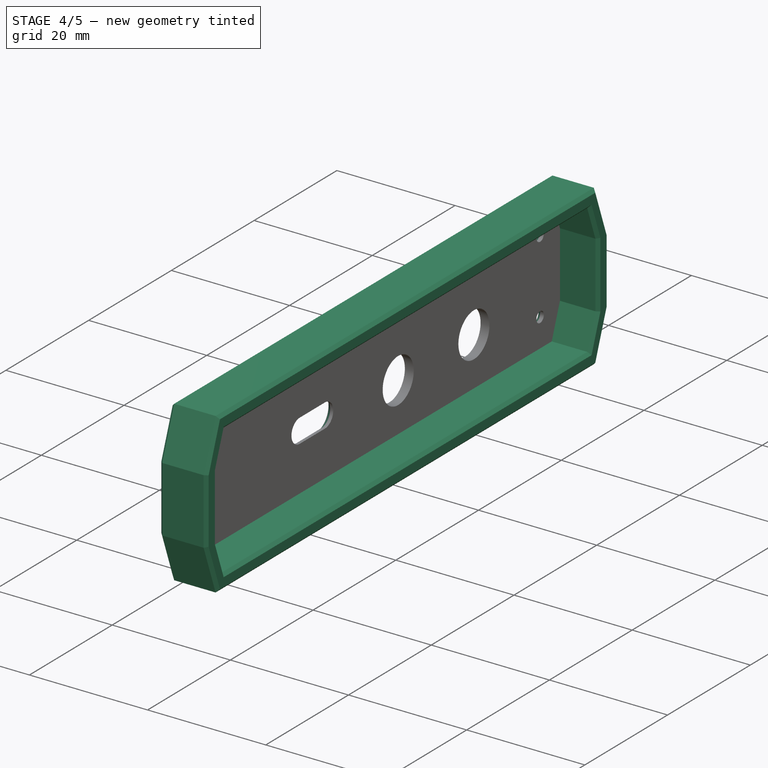
[diagram: stage 4 of 5 — iso view after this stage's code; geometry added in this stage tinted green]
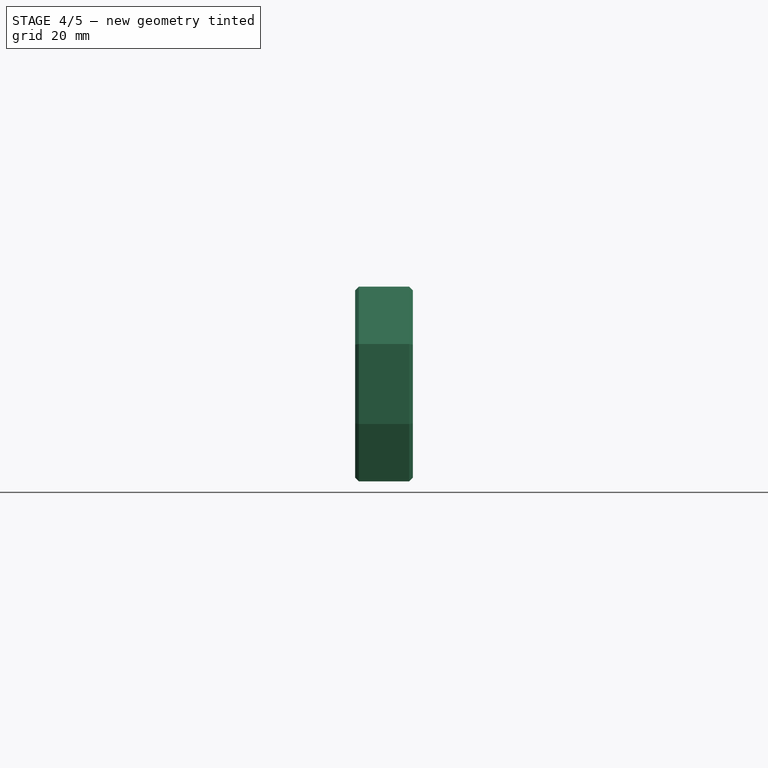
[diagram: stage 4 of 5 — front view after this stage's code; geometry added in this stage tinted green]
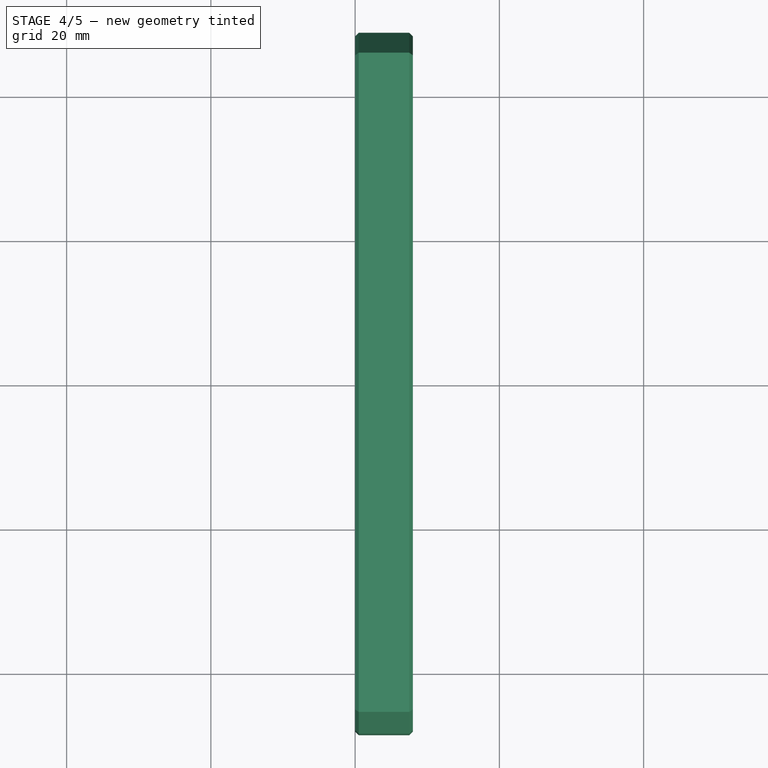
[diagram: stage 4 of 5 — top view after this stage's code; geometry added in this stage tinted green]
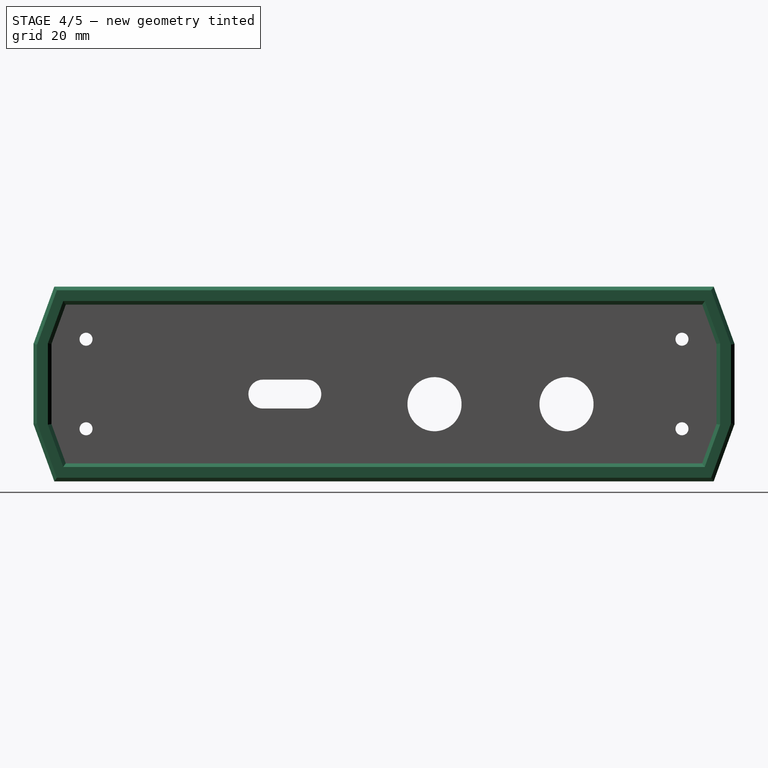
[diagram: stage 4 of 5 — right view after this stage's code; geometry added in this stage tinted green]
FEATURE [PartDesign::Pad] Pad015
  BaseFeature = -> Pad014
  Direction = (1,0,0)
  Length = 8
  Length2 = 10
  Placement = pos=(0,0,0) rot=(1,1,1;2.0944rad)
  Profile = -> Sketch017
  ReferenceAxis = -> Sketch017 [N_Axis]
  Refine = true
  SideType = 0
  Suppressed = false
  Type = 0
  Type2 = 0
FEATURE [PartDesign::Chamfer] Chamfer004
  Angle = 45
  Base = -> Pad015 [Edge33]
  BaseFeature = -> Pad015
  ChamferType = 0
  FlipDirection = false
  Placement = pos=(0,0,0) rot=(1,1,1;2.0944rad)
  Refine = true
  Size = 1
  Size2 = 1
  SupportTransform = false
  Suppressed = false
  UseAllEdges = false
FEATURE [PartDesign::Chamfer] Chamfer005
  Angle = 45
  Base = -> Chamfer004 [Edge83,Edge39,Edge36,Edge77,Edge37,Edge79,Edge81,Edge38,Edge85,Edge40,Edge41,Edge86,Edge73,Edge34,Edge75,Edge35]
  BaseFeature = -> Chamfer004
  ChamferType = 0
  FlipDirection = false
  Placement = pos=(0,0,0) rot=(1,1,1;2.0944rad)
  Refine = true
  Size = 0.5
  Size2 = 1
  SupportTransform = false
  Suppressed = false
  UseAllEdges = false
FEATURE [PartDesign::Chamfer] Chamfer006
  Angle = 45
  Base = -> Chamfer005 [Edge16,Edge15,Edge17,Edge18]
  BaseFeature = -> Chamfer005
  ChamferType = 0
  FlipDirection = false
  Placement = pos=(0,0,0) rot=(1,1,1;2.0944rad)
  Refine = true
  Size = 0.9
  Size2 = 1
  SupportTransform = false
  Suppressed = false
  UseAllEdges = false
FEATURE [PartDesign::Chamfer] Chamfer007
  Angle = 45
  Base = -> Chamfer006 [Edge120,Edge118,Edge116,Edge114,Edge112,Edge122,Edge124,Edge126]
  BaseFeature = -> Chamfer006
  ChamferType = 0
  FlipDirection = false
  Placement = pos=(0,0,0) rot=(1,1,1;2.0944rad)
  Refine = true
  Size = 0.5
  Size2 = 1
  SupportTransform = false
  Suppressed = false
  UseAllEdges = false
FEATURE [PartDesign::Body] Body004  label="Задняя крышка"
  AllowCompound = false
  Group = -> [Binder002,Binder001,Sketch016,Pad014,Sketch017,Pad015,Chamfer004,Chamfer005,Chamfer006,Chamfer007]
  Origin = -> Origin004
  Placement = pos=(-60,0,0) rot=(0,0,1;0rad)
  Tip = -> Chamfer007
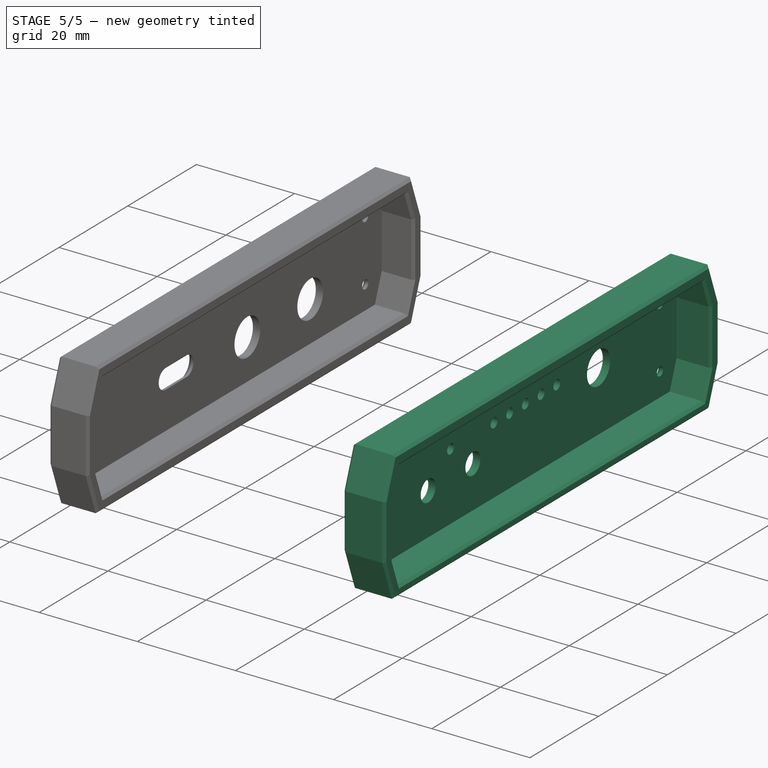
[diagram: stage 5 of 5 — iso view after this stage's code; geometry added in this stage tinted green]
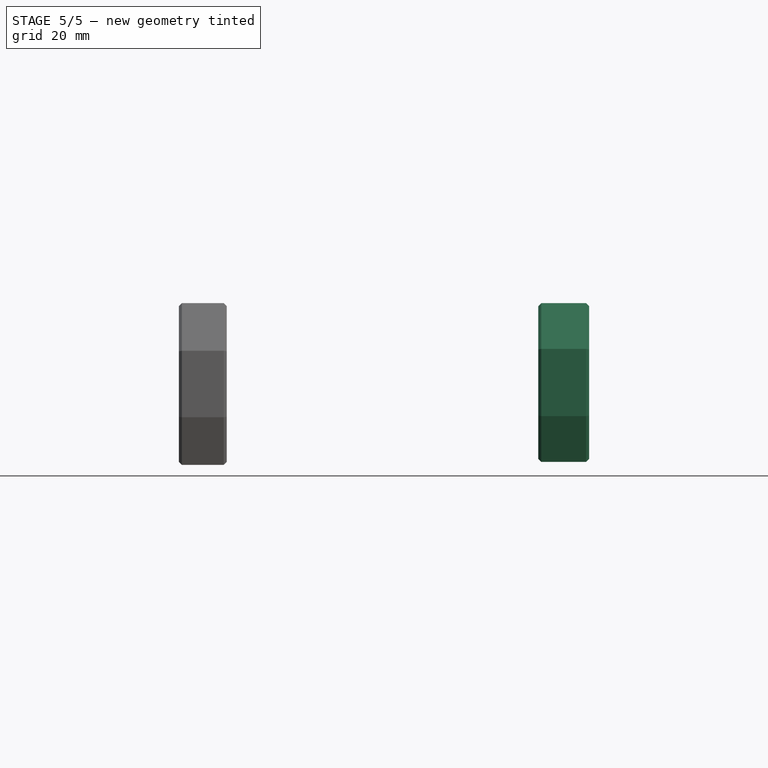
[diagram: stage 5 of 5 — front view after this stage's code; geometry added in this stage tinted green]
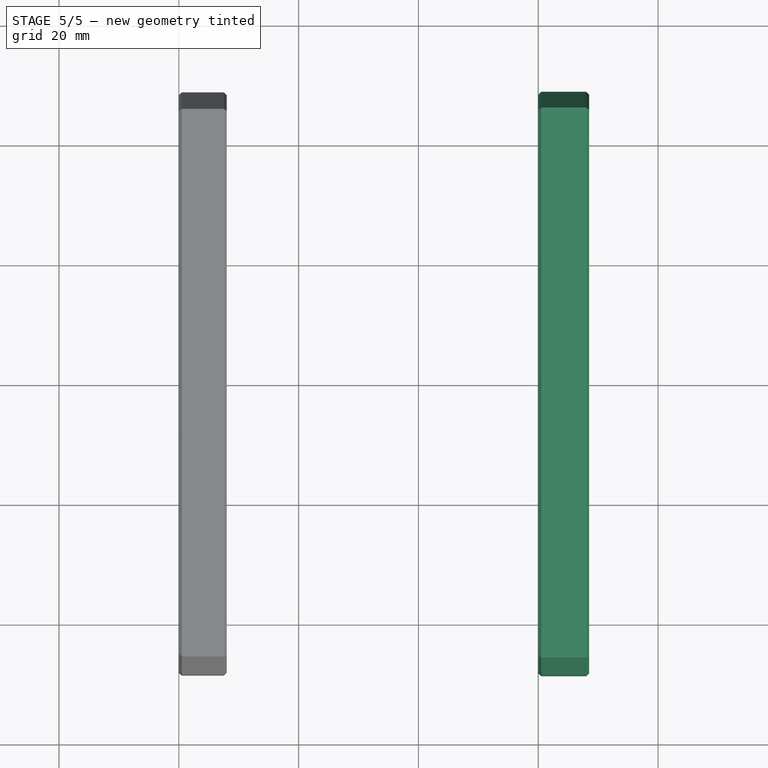
[diagram: stage 5 of 5 — top view after this stage's code; geometry added in this stage tinted green]
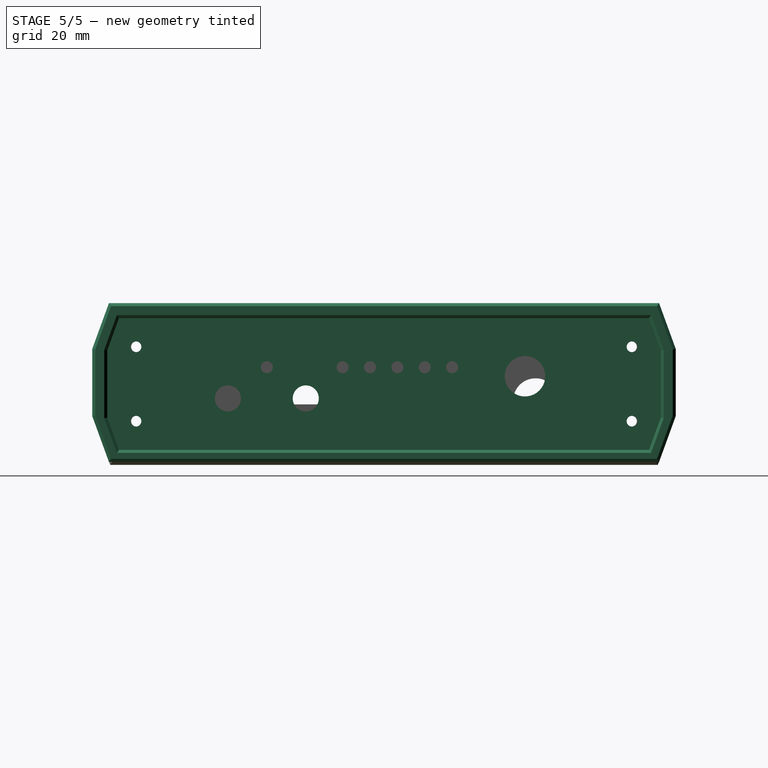
[diagram: stage 5 of 5 — right view after this stage's code; geometry added in this stage tinted green]
FEATURE [PartDesign::Body] Body001  label="Верхняя цертрал"
  AllowCompound = false
  Group = -> [Sketch005,Sketch006,Pad005,Pad006,Pad007,DatumPlane001,Sketch007,Pad008,Sketch008,Pad009,MultiTransform001,Mirrored002,Mirrored003,Sketch009,Pocket,Sketch011,Pad011,Mirrored004]
  Origin = -> Origin002
  Placement = pos=(3e-16,1e-15,-8.6) rot=(0,-1,0;3.14159rad)
  Tip = -> Mirrored004
FEATURE [PartDesign::SubShapeBinder] Binder
  BindCopyOnChange = 0
  BindMode = 2
  ClaimChildren = false
  Context = -> Body003 [Binder.]
  Fuse = false
  MakeFace = true
  OffsetFill = false
  OffsetIntersection = false
  OffsetJoinType = 0
  OffsetOpenResult = false
  PartialLoad = false
  Placement = pos=(123,0,0) rot=(0,0,1;3.14159rad)
  Refine = true
  Relative = true
  _Version = 2
FEATURE [Sketcher::SketchObject] Sketch014
  ArcFitTolerance = 1e-06
  AttachmentOffset = pos=(0,0,60) rot=(0,0,1;0rad)
  AttachmentSupport = -> [YZ_Plane003]
  ExternalGeometry = -> [Binder]
  ExternalTypes = [0]
  FullyConstrained = true
  MakeInternals = false
  MapMode = 5
  Placement = pos=(60,0,0) rot=(0.57735,0.57735,0.57735;2.0944rad)
  _ExternalGeoVersion = 0
  sketch-geometry (23):
    g0: Circle CenterX=-26.0581 CenterY=-6.71 CenterZ=0 NormalX=0 NormalY=0 NormalZ=1 AngleXU=0 Radius=2.175
    g1: Circle CenterX=-19.5581 CenterY=-1.5 CenterZ=0 NormalX=0 NormalY=0 NormalZ=1 AngleXU=0 Radius=1
    g2: Circle CenterX=-13.0581 CenterY=-6.71 CenterZ=0 NormalX=0 NormalY=0 NormalZ=1 AngleXU=0 Radius=2.175
    g3: Circle CenterX=-6.90812 CenterY=-1.5 CenterZ=0 NormalX=0 NormalY=0 NormalZ=1 AngleXU=0 Radius=1
    g4: Circle CenterX=-2.33812 CenterY=-1.5 CenterZ=0 NormalX=0 NormalY=0 NormalZ=1 AngleXU=0 Radius=1
    g5: Circle CenterX=2.23188 CenterY=-1.5 CenterZ=0 NormalX=0 NormalY=0 NormalZ=1 AngleXU=0 Radius=1
    g6: Circle CenterX=6.80188 CenterY=-1.5 CenterZ=0 NormalX=0 NormalY=0 NormalZ=1 AngleXU=0 Radius=1
    g7: Circle CenterX=11.3719 CenterY=-1.5 CenterZ=0 NormalX=0 NormalY=0 NormalZ=1 AngleXU=0 Radius=1
    g8: Circle CenterX=23.5319 CenterY=-3 CenterZ=0 NormalX=0 NormalY=0 NormalZ=1 AngleXU=0 Radius=3.375
    g9: Circle CenterX=-41.4092 CenterY=1.90919 CenterZ=0 NormalX=0 NormalY=0 NormalZ=1 AngleXU=0 Radius=0.9
    g10: Circle CenterX=41.4092 CenterY=1.90919 CenterZ=0 NormalX=0 NormalY=0 NormalZ=1 AngleXU=0 Radius=0.9
    g11: Circle CenterX=41.4092 CenterY=-10.5092 CenterZ=0 NormalX=0 NormalY=0 NormalZ=1 AngleXU=0 Radius=0.9
    g12: Circle CenterX=-41.4092 CenterY=-10.5092 CenterZ=0 NormalX=0 NormalY=0 NormalZ=1 AngleXU=0 Radius=0.9
    g13: LineSegment [constr] StartX=-45.7 StartY=-9.85 StartZ=0 EndX=45.7 EndY=1.25 EndZ=0
    g14: LineSegment [constr] StartX=45.7 StartY=-9.85 StartZ=0 EndX=-45.7 EndY=1.25 EndZ=0
    g15: LineSegment StartX=-44.2385 StartY=6.7 StartZ=0 EndX=44.2385 EndY=6.7 EndZ=0
    g16: LineSegment StartX=44.2385 StartY=6.7 StartZ=0 EndX=46.2 EndY=1.31072 EndZ=0
    g17: LineSegment StartX=46.2 StartY=1.31072 StartZ=0 EndX=46.2 EndY=-9.91072 EndZ=0
    g18: LineSegment StartX=46.2 StartY=-9.91072 StartZ=0 EndX=44.2385 EndY=-15.3 EndZ=0
    g19: LineSegment StartX=44.2385 StartY=-15.3 StartZ=0 EndX=-44.2385 EndY=-15.3 EndZ=0
    g20: LineSegment StartX=-44.2385 StartY=-15.3 StartZ=0 EndX=-46.2 EndY=-9.91072 EndZ=0
    g21: LineSegment StartX=-46.2 StartY=-9.91072 StartZ=0 EndX=-46.2 EndY=1.31072 EndZ=0
    g22: LineSegment StartX=-46.2 StartY=1.31072 StartZ=0 EndX=-44.2385 EndY=6.7 EndZ=0
  constraints (59):
    c: Coincident(g1,g-22)
    c: Coincident(g3,g-20)
    c: Coincident(g4,g-18)
    c: Coincident(g5,g-17)
    c: Coincident(g6,g-16)
    c: Coincident(g7,g-15)
    c: Equal(g7,g6)
    c: Equal(g6,g5)
    c: Equal(g5,g4)
    c: Equal(g4,g3)
    c: Equal(g3,g1)
    c: Equal(g7,g-15)
    c: Coincident(g9,g-5)
    c: Coincident(g10,g-12)
    c: Coincident(g11,g-13)
    c: Coincident(g12,g-8)
    c: Equal(g9,g12)
    c: Equal(g12,g11)
    c: Equal(g11,g10)
    c: Equal(g10,g-12)
    c: Coincident(g-6,g13)
    c: Coincident(g13,g-11)
    c: Coincident(g-10,g14)
    c: Coincident(g14,g-3)
    c: Horizontal(g15)
    c: Coincident(g15,g16)
    c: Coincident(g16,g17)
    c: Vertical(g17)
    c: Coincident(g17,g18)
    c: Coincident(g18,g19)
    c: Horizontal(g19)
    c: Coincident(g19,g20)
    c: Coincident(g20,g21)
    c: Coincident(g21,g22)
    c: Coincident(g22,g15)
    c: Parallel(g22,g-3)
    c: Parallel(g-6,g20)
    c: Parallel(g18,g-10)
    c: Parallel(g16,g-11)
    c: PointOnObject(g16,g13)
    c: PointOnObject(g20,g13)
    c: PointOnObject(g21,g14)
    c: PointOnObject(g17,g14)
    c: Vertical(g21)
    c: DistanceX(g-4,g-4) = 87.7967
    c: Equal(g2,g0)
    c: Distance(g0,g2) = 8.65
    c: Distance(g14,g21) = 0.5
    c: DistanceX(g13,g16) = 0.5
    c: DistanceY(g19,g15) = 22
    c: Distance(g-9,g19) = 0.5
    c: Distance(g15,g-4) = 0.5
    c: Vertical(g2,g-21)
    c: Vertical(g0,g-23)
    c: Horizontal(g0,g2)
    c: DistanceY(g0,g-23) = 1.5
    c: DistanceY(g8,g-14) = 1.5
    c: Diameter(g8) = 6.75
    c: Vertical(g8,g-14)
FEATURE [PartDesign::Pad] Pad012
  Direction = (1,0,0)
  Length = 1.5
  Length2 = 10
  Placement = pos=(0,0,0) rot=(1,1,1;2.0944rad)
  Profile = -> Sketch014
  ReferenceAxis = -> Sketch014 [N_Axis]
  Refine = true
  SideType = 0
  Suppressed = false
  Type = 0
  Type2 = 0
FEATURE [Sketcher::SketchObject] Sketch015
  ArcFitTolerance = 1e-06
  AttachmentSupport = -> [Pad012]
  ExternalTypes = [0]
  FullyConstrained = true
  MakeInternals = false
  MapMode = 5
  Placement = pos=(61.5,-1.37e-14,6.8e-15) rot=(0.57735,0.57735,0.57735;2.0944rad)
  _ExternalGeoVersion = 0
  sketch-geometry (19):
    g0: LineSegment StartX=-44.2385 StartY=6.7 StartZ=0 EndX=44.2385 EndY=6.7 EndZ=0
    g1: LineSegment StartX=44.2385 StartY=6.7 StartZ=0 EndX=46.2 EndY=1.31072 EndZ=0
    g2: LineSegment StartX=46.2 StartY=1.31072 StartZ=0 EndX=46.2 EndY=-9.91072 EndZ=0
    g3: LineSegment StartX=46.2 StartY=-9.91072 StartZ=0 EndX=44.2385 EndY=-15.3 EndZ=0
    g4: LineSegment StartX=44.2385 StartY=-15.3 StartZ=0 EndX=-44.2385 EndY=-15.3 EndZ=0
    g5: LineSegment StartX=-44.2385 StartY=-15.3 StartZ=0 EndX=-46.2 EndY=-9.91072 EndZ=0
    g6: LineSegment StartX=-46.2 StartY=-9.91072 StartZ=0 EndX=-46.2 EndY=1.31072 EndZ=0
    g7: LineSegment StartX=-46.2 StartY=1.31072 StartZ=0 EndX=-44.2385 EndY=6.7 EndZ=0
    g8: LineSegment StartX=-45.9195 StartY=9.2 StartZ=0 EndX=-48.7 EndY=1.56072 EndZ=0
    g9: LineSegment StartX=-48.7 StartY=1.56072 StartZ=0 EndX=-48.7 EndY=-9.66072 EndZ=0
    g10: LineSegment StartX=-48.7 StartY=-9.66072 StartZ=0 EndX=-45.9195 EndY=-17.3 EndZ=0
    g11: LineSegment StartX=-45.9195 StartY=-17.3 StartZ=0 EndX=45.9195 EndY=-17.3 EndZ=0
    g12: LineSegment StartX=45.9195 StartY=-17.3 StartZ=0 EndX=48.7 EndY=-9.66072 EndZ=0
    g13: LineSegment StartX=48.7 StartY=-9.66072 StartZ=0 EndX=48.7 EndY=1.56072 EndZ=0
    g14: LineSegment StartX=48.7 StartY=1.56072 StartZ=0 EndX=45.9195 EndY=9.2 EndZ=0
    g15: LineSegment StartX=45.9195 StartY=9.2 StartZ=0 EndX=-45.9195 EndY=9.2 EndZ=0
    g16: GeomPoint [constr] X=-3.456e-13 Y=-4.05 Z=0
    g17: LineSegment [constr] StartX=-45.7 StartY=1.25 StartZ=0 EndX=45.7 EndY=-9.85 EndZ=0
    g18: LineSegment [constr] StartX=45.7 StartY=1.25 StartZ=0 EndX=-45.7 EndY=-9.85 EndZ=0
  constraints (55):
    c: Coincident(g8,g9)
    c: Vertical(g9)
    c: Coincident(g9,g10)
    c: Coincident(g10,g11)
    c: Horizontal(g11)
    c: Coincident(g11,g12)
    c: Coincident(g12,g13)
    c: Vertical(g13)
    c: Coincident(g13,g14)
    c: Coincident(g14,g15)
    c: Coincident(g15,g8)
    c: Horizontal(g15)
    c: Parallel(g10,g5)
    c: Parallel(g8,g7)
    c: Parallel(g3,g12)
    c: Parallel(g1,g14)
    c: Distance(g15,g0) = 2.5
    c: Distance(g13,g2) = 2.5
    c: Symmetric(g14,g10,g16)
    c: Equal(g6,g9)
    c: Equal(g2,g13)
    c: Equal(g10,g14)
    c: Distance(g4,g11) = 2
    c: Equal(g10,g8)
    c: Distance(g9,g6) = 2.5
    c: Coincident(g0,g1)
    c: Coincident(g2,g1)
    c: Coincident(g3,g2)
    c: Coincident(g4,g3)
    c: Coincident(g7,g0)
    c: Coincident(g6,g7)
    c: Coincident(g5,g6)
    c: Coincident(g4,g5)
    c: Parallel(g3,g-14)
    c: Parallel(g-13,g1)
    c: Parallel(g7,g-12)
    c: Parallel(g-11,g5)
    c: Coincident(g-12,g17)
    c: Coincident(g17,g-14)
    c: Coincident(g-13,g18)
    c: Coincident(g18,g-11)
    c: PointOnObject(g5,g18)
    c: PointOnObject(g6,g17)
    c: PointOnObject(g1,g18)
    c: PointOnObject(g2,g17)
    c: Vertical(g6)
    c: Vertical(g2)
    c: DistanceY(g3,g-14) = 0.5
    c: DistanceY(g-13,g0) = 0.5
    c: Horizontal(g0)
    c: Horizontal(g4)
    c: DistanceX(g6,g17) = 0.5
    c: DistanceX(g18,g1) = 0.5
    c: DistanceX(g0,g0) = 88.4769
    c: Distance(g2,g6) = 92.4
FEATURE [PartDesign::Pad] Pad013
  BaseFeature = -> Pad012
  Direction = (1,0,0)
  Length = 1.5
  Length2 = 7
  Placement = pos=(0,0,0) rot=(1,1,1;2.0944rad)
  Profile = -> Sketch015
  ReferenceAxis = -> Sketch015 [N_Axis]
  Refine = true
  Reversed = true
  SideType = 1
  Suppressed = false
  Type = 0
  Type2 = 0
FEATURE [PartDesign::Chamfer] Chamfer
  Angle = 45
  Base = -> Pad013 [Edge79,Edge73,Edge75,Edge77]
  BaseFeature = -> Pad013
  ChamferType = 0
  FlipDirection = false
  Placement = pos=(0,0,0) rot=(1,1,1;2.0944rad)
  Refine = true
  Size = 0.9
  Size2 = 1
  SupportTransform = false
  Suppressed = false
  UseAllEdges = false
FEATURE [PartDesign::Chamfer] Chamfer001
  Angle = 45
  Base = -> Chamfer [Edge47,Edge61,Edge60,Edge58,Edge56,Edge54,Edge52,Edge50]
  BaseFeature = -> Chamfer
  ChamferType = 0
  FlipDirection = false
  Placement = pos=(0,0,0) rot=(1,1,1;2.0944rad)
  Refine = true
  Size = 0.5
  Size2 = 1
  SupportTransform = false
  Suppressed = false
  UseAllEdges = false
FEATURE [PartDesign::Chamfer] Chamfer002
  Angle = 45
  Base = -> Chamfer001 [Edge50,Edge43,Edge44,Edge45,Edge46,Edge47,Edge48,Edge49,Edge102,Edge100,Edge98,Edge96,Edge103,Edge90,Edge92,Edge94]
  BaseFeature = -> Chamfer001
  ChamferType = 0
  FlipDirection = false
  Placement = pos=(0,0,0) rot=(1,1,1;2.0944rad)
  Refine = true
  Size = 0.5
  Size2 = 1
  SupportTransform = false
  Suppressed = false
  UseAllEdges = false
FEATURE [PartDesign::SubShapeBinder] Binder001
  BindCopyOnChange = 0
  BindMode = 0
  ClaimChildren = false
  Context = -> Body004 [Binder001.]
  Fuse = false
  MakeFace = true
  OffsetFill = false
  OffsetIntersection = false
  OffsetJoinType = 0
  OffsetOpenResult = false
  PartialLoad = false
  Refine = true
  Relative = true
  Support = -> [Body[MultiTransform.Edge93,MultiTransform.Edge89,MultiTransform.Edge88],Body001[Mirrored004.Vertex76,Mirrored004.Edge103,Mirrored004.Edge102,Mirrored004.Edge97],Body002[Sketch012.Edge3,Sketch012.Edge6,Sketch012.Edge4,Sketch012.Edge5,Sketch012.Edge2,Sketch012.Edge1],Binder002]
  _Version = 2
FEATURE [App::Point] Origin005  label="Начало координат"
  Role = Origin
FEATURE [App::Point] Origin006  label="Начало координат"
  Role = Origin
FEATURE [App::Point] Origin007  label="Начало координат"
  Role = Origin
FEATURE [App::Point] Origin008  label="Начало координат"
  Role = Origin
FEATURE [App::Point] Origin009  label="Начало координат"
  Role = Origin
FEATURE [Sketcher::SketchObject] Sketch012
  ArcFitTolerance = 1e-06
  AttachmentOffset = pos=(0,-1.6,-68.5) rot=(0,0,1;3.14159rad)
  AttachmentSupport = -> [YZ_Plane]
  ExternalGeometry = -> [Pad010]
  ExternalTypes = [0,0,0]
  FullyConstrained = true
  MakeInternals = false
  MapMode = 5
  Placement = pos=(-68.5,0,-1.6) rot=(0.57735,-0.57735,0.57735;4.18879rad)
  _ExternalGeoVersion = 0
  sketch-geometry (19):
    g0: GeomPoint X=-16.5026 Y=-1.6 Z=0
    g1: GeomPoint X=-23.5026 Y=-1.6 Z=0
    g2: GeomPoint X=-41.8026 Y=-1.6 Z=0
    g3: GeomPoint X=-5.80259 Y=-0.2 Z=0
    g4: GeomPoint X=0.297407 Y=-0.2 Z=0
    g5: Circle CenterX=-41.8026 CenterY=-1.6 CenterZ=0 NormalX=0 NormalY=0 NormalZ=1 AngleXU=0 Radius=3.75
    g6: Circle CenterX=-23.5026 CenterY=-1.6 CenterZ=0 NormalX=0 NormalY=0 NormalZ=1 AngleXU=0 Radius=3.75
    g7: ArcOfCircle CenterX=-5.80259 CenterY=-0.2 CenterZ=0 NormalX=0 NormalY=0 NormalZ=1 AngleXU=0 Radius=2 StartAngle=1.5708 EndAngle=4.71239
    g8: ArcOfCircle CenterX=0.297407 CenterY=-0.2 CenterZ=0 NormalX=0 NormalY=0 NormalZ=1 AngleXU=0 Radius=2 StartAngle=4.71239 EndAngle=7.85398
    g9: LineSegment StartX=-5.80259 StartY=1.8 StartZ=0 EndX=0.297407 EndY=1.8 EndZ=0
    g10: LineSegment StartX=0.297407 StartY=-2.2 StartZ=0 EndX=-5.80259 EndY=-2.2 EndZ=0
    g11: GeomPoint [constr] X=-45.5526 Y=-1.6 Z=0
    g12: GeomPoint [constr] X=-27.2526 Y=-1.6 Z=0
    g13: GeomPoint [constr] X=-38.0526 Y=-1.6 Z=0
    g14: GeomPoint [constr] X=-19.7526 Y=-1.6 Z=0
    g15: GeomPoint [constr] X=-7.80259 Y=-0.2 Z=0
    g16: GeomPoint [constr] X=2.29741 Y=-0.2 Z=0
    g17: LineSegment [constr] StartX=-5.80259 StartY=-0.2 StartZ=0 EndX=-2.75259 EndY=-0.2 EndZ=0
    g18: LineSegment [constr] StartX=-2.75259 StartY=-0.2 StartZ=0 EndX=0.297407 EndY=-0.2 EndZ=0
  constraints (45):
    c: DistanceX(g1,g0) = 7
    c: DistanceX(g2,g0) = 25.3
    c: DistanceX(g3,g4) = 6.1
    c: Horizontal(g0,g1)
    c: Horizontal(g1,g2)
    c: Horizontal(g4,g3)
    c: Coincident(g5,g2)
    c: Coincident(g6,g1)
    c: Coincident(g7,g3)
    c: Coincident(g8,g4)
    c: Equal(g6,g5)
    c: Diameter(g6) = 7.5
    c: Diameter(g7) = 4
    c: Equal(g8,g7)
    c: Horizontal(g9)
    c: Horizontal(g10)
    c: Coincident(g7,g10)
    c: Coincident(g7,g9)
    c: Tangent(g8,g9) = 1.5708
    c: Tangent(g8,g10) = 1.5708
    c: Symmetric(g-4,g-3,g0)
    c: PointOnObject(g11,g5)
    c: PointOnObject(g12,g6)
    c: PointOnObject(g12,g-5)
    c: PointOnObject(g11,g-5)
    c: PointOnObject(g13,g5)
    c: PointOnObject(g14,g6)
    c: PointOnObject(g13,g-5)
    c: PointOnObject(g14,g-5)
    c: DistanceX(g-5,g13) = 15.85
    c: DistanceX(g12,g0) = 10.75
    c: DistanceX(g-5,g14) = 34.15
    c: PointOnObject(g15,g7)
    c: Horizontal(g3,g15)
    c: DistanceX(g15,g-5) = 28.7
    c: PointOnObject(g16,g8)
    c: Horizontal(g16,g4)
    c: DistanceX(g16,g-5) = 18.6
    c: Coincident(g17,g3)
    c: Horizontal(g17)
    c: Coincident(g17,g18)
    c: Coincident(g18,g4)
    c: Equal(g17,g18)
    c: DistanceX(g0,g17) = 13.75
    c: DistanceY(g-4,g8) = 1
FEATURE [Sketcher::SketchObject] Sketch013
  ArcFitTolerance = 1e-06
  AttachmentOffset = pos=(0,1.6,51.5) rot=(-1,0,0;3.14159rad)
  AttachmentSupport = -> [YZ_Plane]
  ExternalGeometry = -> [Pad010]
  ExternalTypes = [0]
  FullyConstrained = true
  MakeInternals = false
  MapMode = 5
  Placement = pos=(51.5,0,1.6) rot=(-0.57735,-0.57735,0.57735;2.0944rad)
  _ExternalGeoVersion = 0
  sketch-geometry (20):
    g0: GeomPoint [constr] X=16.5026 Y=1.6 Z=0
    g1: GeomPoint X=18.7026 Y=1.6 Z=0
    g2: GeomPoint X=23.2726 Y=1.6 Z=0
    g3: GeomPoint X=27.8426 Y=1.6 Z=0
    g4: GeomPoint X=14.1326 Y=1.6 Z=0
    g5: GeomPoint X=9.56259 Y=1.6 Z=0
    g6: GeomPoint X=-3.08741 Y=1.6 Z=0
    g7: GeomPoint [constr] X=-3.08741 Y=5.31 Z=0
    g8: GeomPoint X=-9.58741 Y=5.31 Z=0
    g9: GeomPoint X=3.41259 Y=5.31 Z=0
    g10: GeomPoint X=40.0026 Y=1.6 Z=0
    g11: Circle CenterX=40.0026 CenterY=1.6 CenterZ=0 NormalX=0 NormalY=0 NormalZ=1 AngleXU=0 Radius=3.25
    g12: Circle CenterX=27.8426 CenterY=1.6 CenterZ=0 NormalX=0 NormalY=0 NormalZ=1 AngleXU=0 Radius=1
    g13: Circle CenterX=23.2726 CenterY=1.6 CenterZ=0 NormalX=0 NormalY=0 NormalZ=1 AngleXU=0 Radius=1
    g14: Circle CenterX=18.7026 CenterY=1.6 CenterZ=0 NormalX=0 NormalY=0 NormalZ=1 AngleXU=0 Radius=1
    g15: Circle CenterX=14.1326 CenterY=1.6 CenterZ=0 NormalX=0 NormalY=0 NormalZ=1 AngleXU=0 Radius=1
    g16: Circle CenterX=-3.08741 CenterY=1.6 CenterZ=0 NormalX=0 NormalY=0 NormalZ=1 AngleXU=0 Radius=1
    g17: Circle CenterX=9.56259 CenterY=1.6 CenterZ=0 NormalX=0 NormalY=0 NormalZ=1 AngleXU=0 Radius=1
    g18: Circle CenterX=3.41259 CenterY=5.31 CenterZ=0 NormalX=0 NormalY=0 NormalZ=1 AngleXU=0 Radius=2
    g19: Circle CenterX=-9.58741 CenterY=5.31 CenterZ=0 NormalX=0 NormalY=0 NormalZ=1 AngleXU=0 Radius=2
  constraints (38):
    c: DistanceX(g0,g1) = 2.2
    c: DistanceX(g1,g2) = 4.57
    c: DistanceX(g2,g3) = 4.57
    c: DistanceX(g4,g1) = 4.57
    c: DistanceX(g5,g4) = 4.57
    c: Horizontal(g5,g4)
    c: Horizontal(g4,g0)
    c: Horizontal(g0,g1)
    c: Horizontal(g1,g2)
    c: Horizontal(g2,g3)
    c: DistanceX(g6,g5) = 12.65
    c: Symmetric(g9,g8,g7)
    c: Vertical(g7,g6)
    c: DistanceY(g6,g7) = 3.71
    c: Horizontal(g6,g5)
    c: DistanceX(g8,g7) = 6.5
    c: Horizontal(g8,g9)
    c: DistanceX(g3,g10) = 12.16
    c: Horizontal(g3,g10)
    c: Coincident(g11,g10)
    c: Diameter(g11) = 6.5
    c: Coincident(g12,g3)
    c: Coincident(g13,g2)
    c: Coincident(g14,g1)
    c: Coincident(g15,g4)
    c: Coincident(g16,g6)
    c: Coincident(g17,g5)
    c: Equal(g16,g17)
    c: Equal(g17,g15)
    c: Equal(g15,g14)
    c: Equal(g14,g13)
    c: Equal(g13,g12)
    c: Diameter(g13) = 2
    c: Coincident(g18,g9)
    c: Coincident(g19,g8)
    c: Equal(g19,g18)
    c: Diameter(g18) = 4
    c: Symmetric(g-6,g-5,g0)
FEATURE [PartDesign::Body] Body002  label="ТИПО ПЛАТА\"
  AllowCompound = false
  Group = -> [Sketch010,Pad010,Sketch012,Sketch013]
  Origin = -> Origin
  Placement = pos=(8.5,-16.5,-1.5) rot=(0,0,1;0rad)
  Tip = -> Pad010
FEATURE [PartDesign::Chamfer] Chamfer003
  Angle = 45
  Base = -> Chamfer002 [Edge119,Edge115,Edge116,Edge114,Edge117]
  BaseFeature = -> Chamfer002
  ChamferType = 0
  FlipDirection = false
  Placement = pos=(0,0,0) rot=(1,1,1;2.0944rad)
  Refine = true
  Size = 0.4
  Size2 = 1
  SupportTransform = false
  Suppressed = false
  UseAllEdges = false
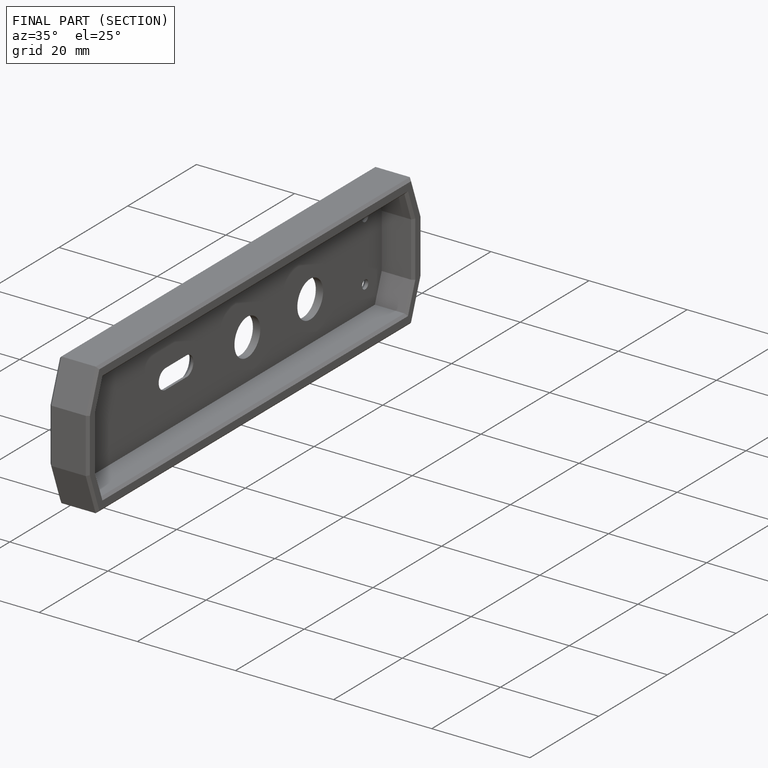
[diagram: finished part — half-section view (interior)]
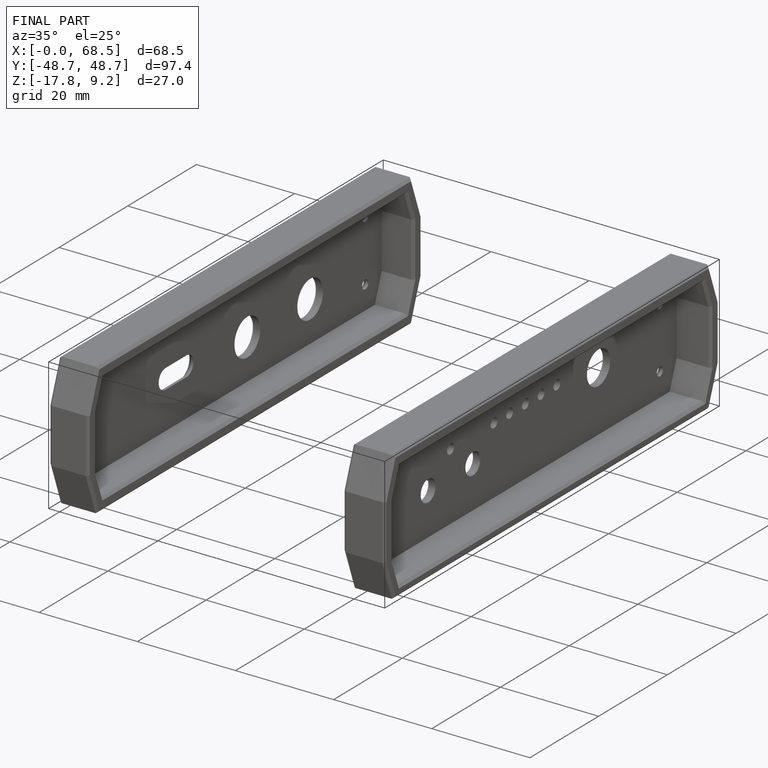
[diagram: finished part — iso view with bounding-box wireframe]
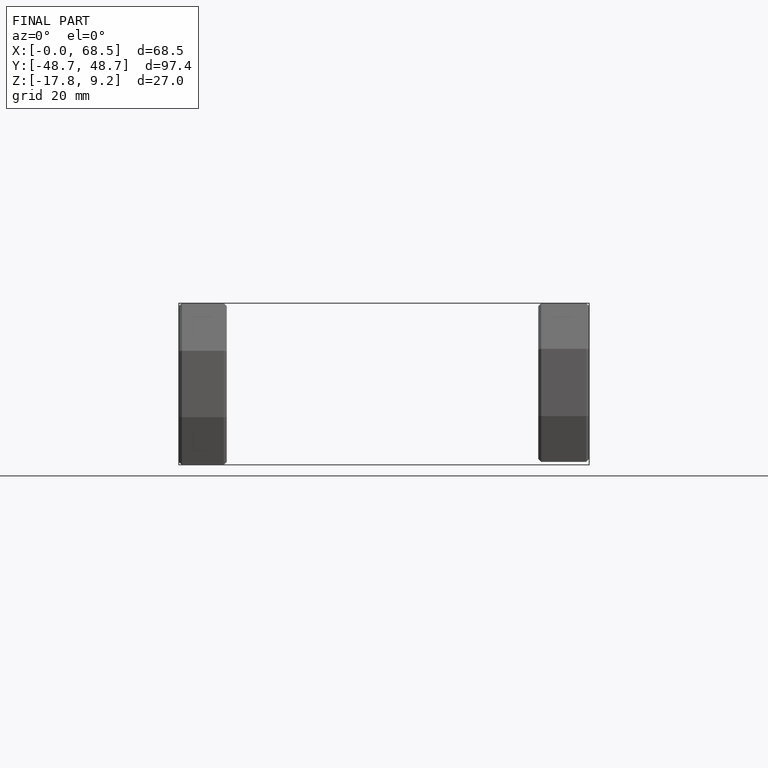
[diagram: finished part — front view with bounding-box wireframe]
